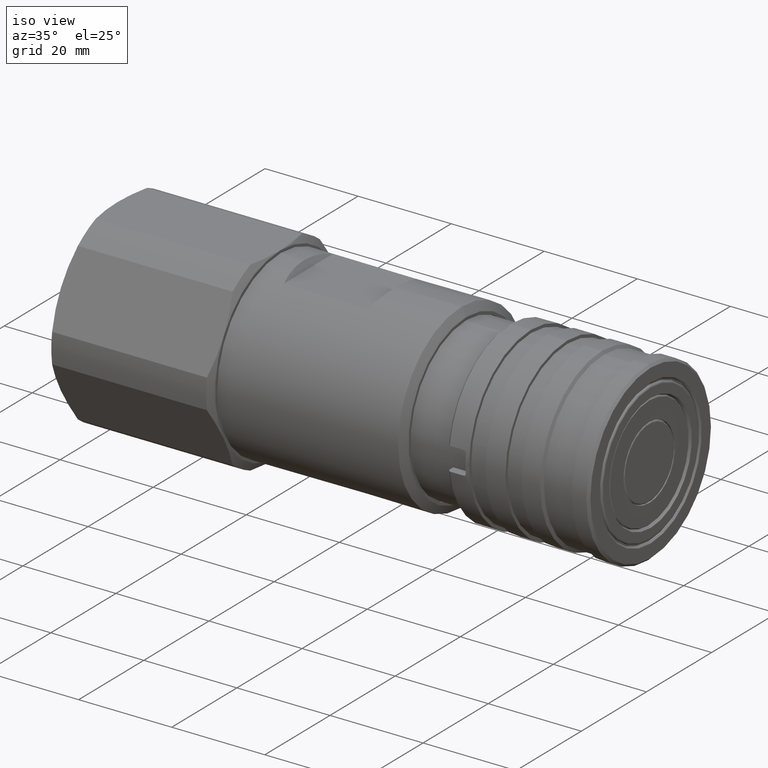
[diagram: clean part render]
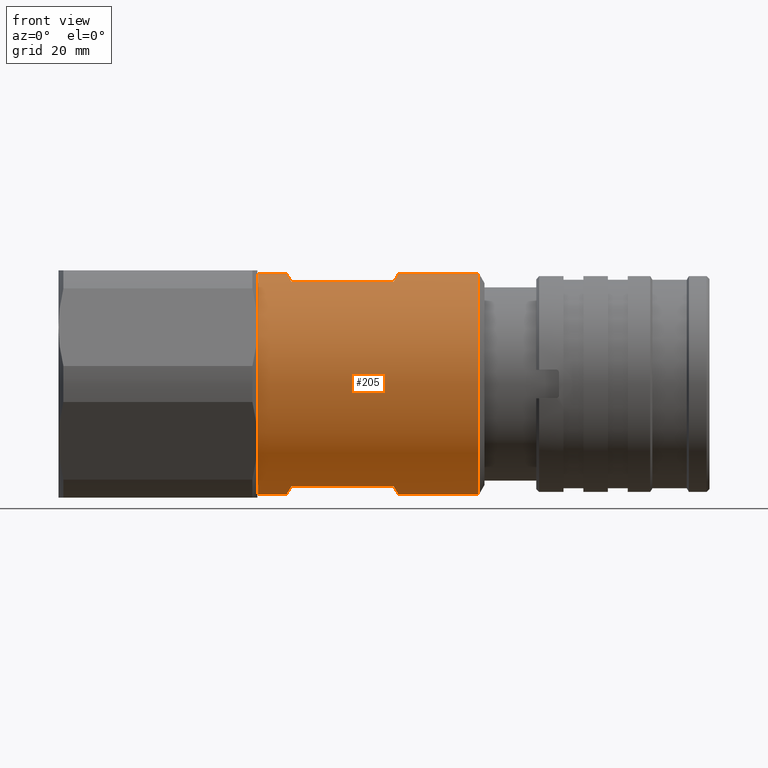
[diagram: tour spotlight — one face highlighted and labeled with its STEP entity id]
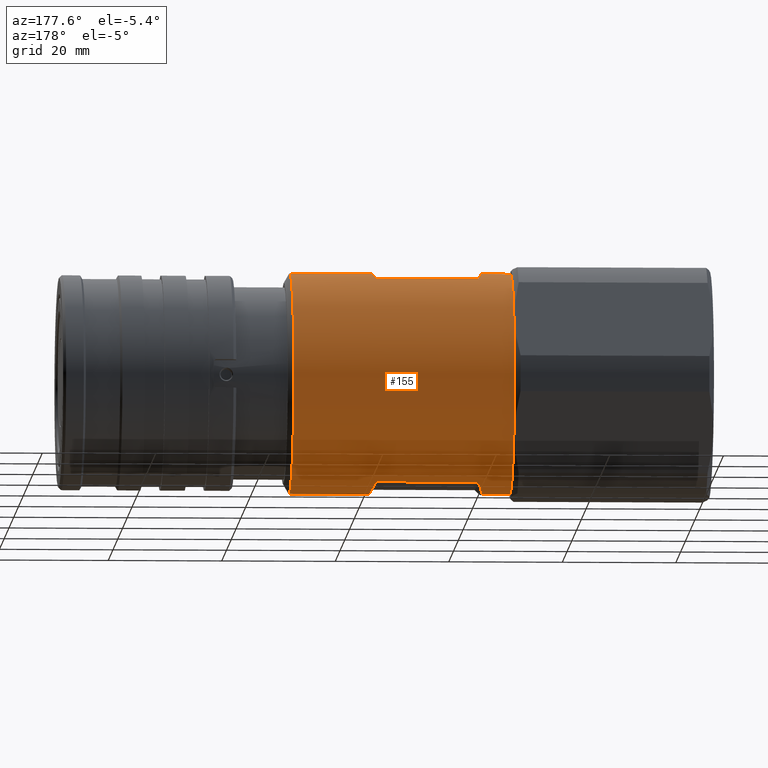
[diagram: tour spotlight — one face highlighted and labeled with its STEP entity id]
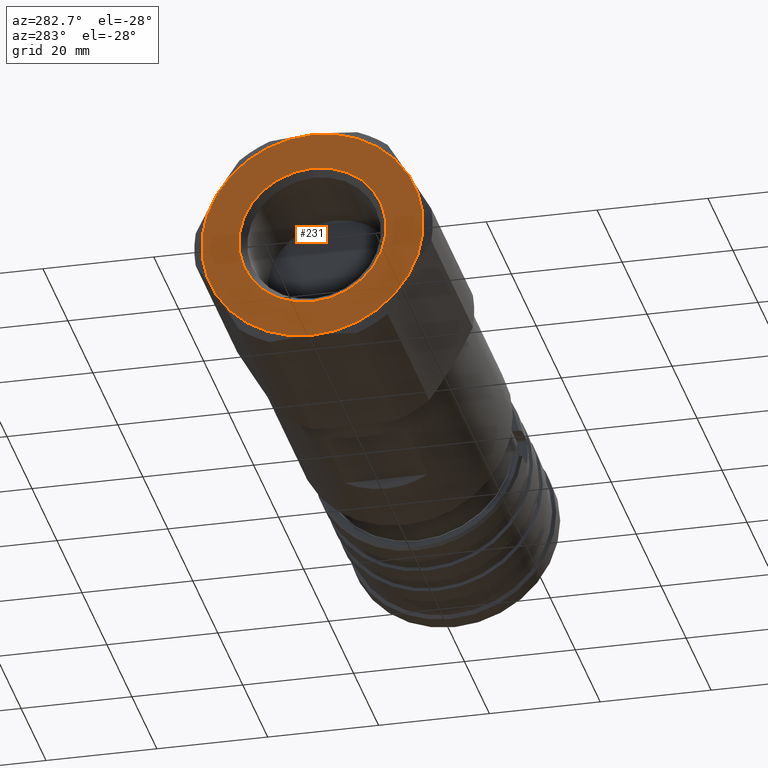
[diagram: tour spotlight — one face highlighted and labeled with its STEP entity id]
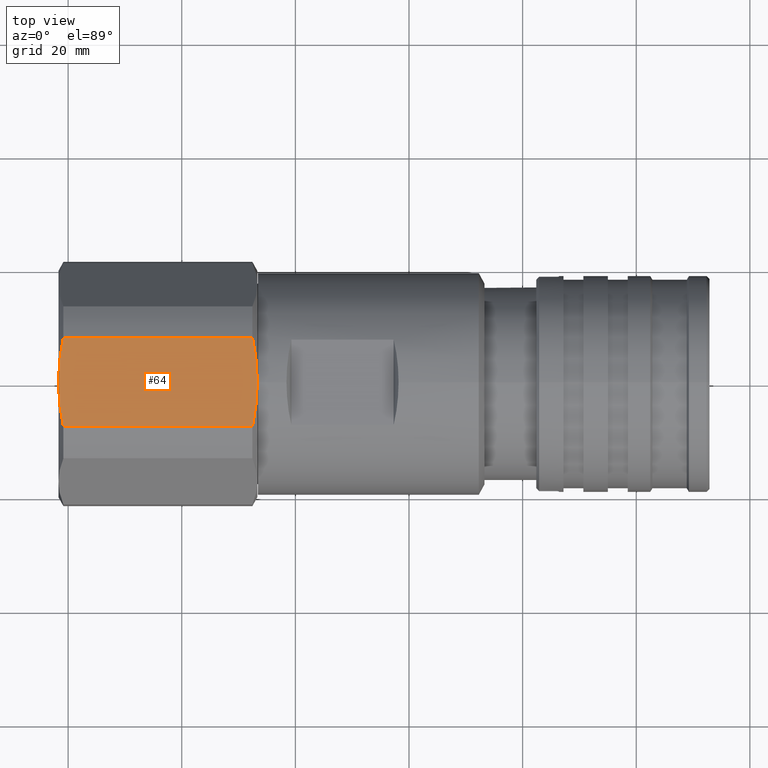
[diagram: tour spotlight — one face highlighted and labeled with its STEP entity id]
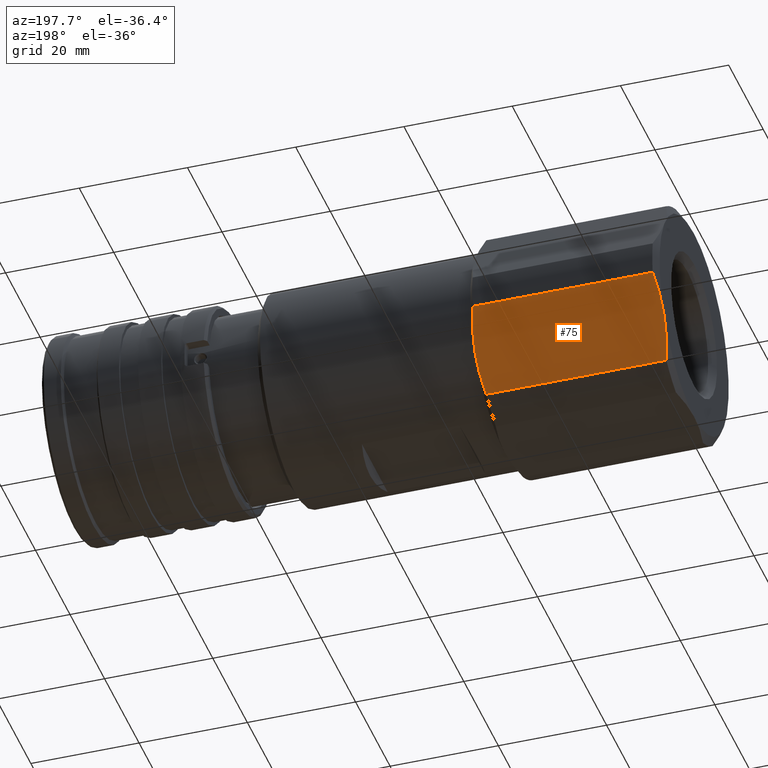
[diagram: tour spotlight — one face highlighted and labeled with its STEP entity id]
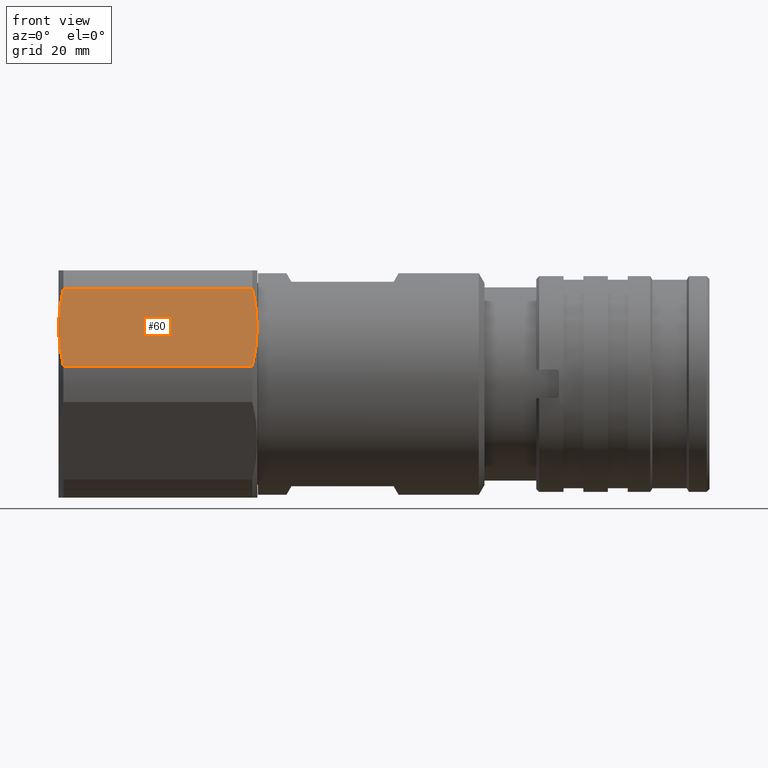
[diagram: tour spotlight — one face highlighted and labeled with its STEP entity id]
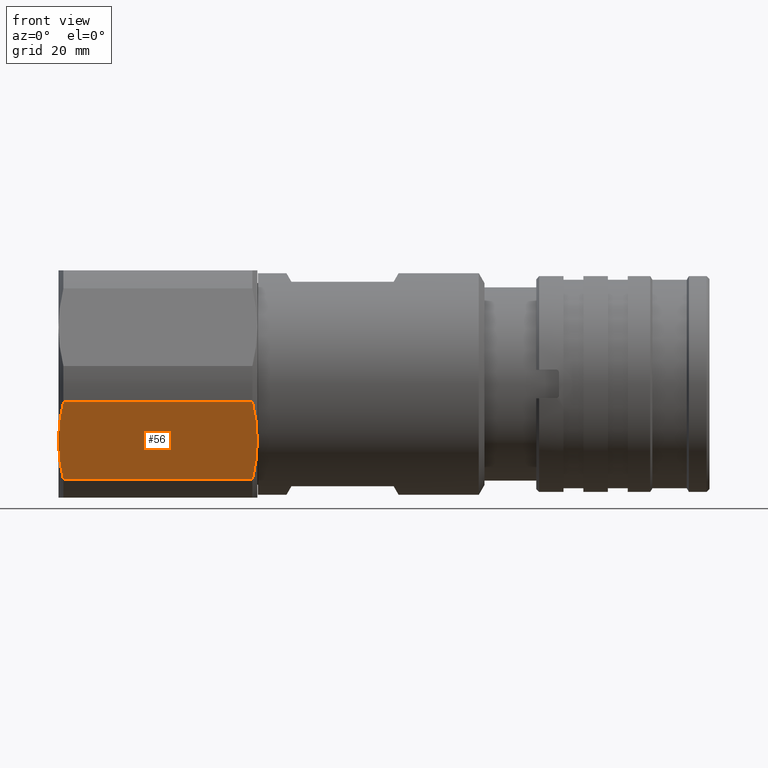
[diagram: tour spotlight — one face highlighted and labeled with its STEP entity id]
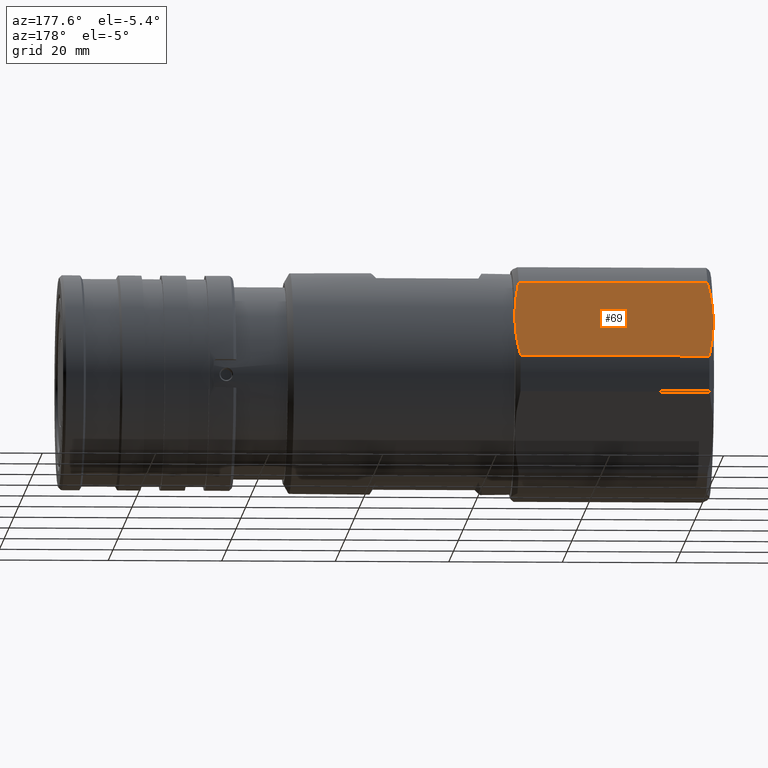
[diagram: tour spotlight — one face highlighted and labeled with its STEP entity id]
A machine part: a face-by-face anatomy tour. The part has 127 B-rep faces; the first image is the clean iso view, then the 8 largest visible faces are spotlighted one at a time (largest first), each with its STEP entity span.

Face 1 — front view, entity #205. In plain terms, the highlighted cylindrical surface (partial cylindrical patch) has radius 19.5 mm, axis along (-1, 0, 0).
Definition (entity closure, byte-faithful):
#4 =( BOUNDED_CURVE ( )  B_SPLINE_CURVE ( 3, ( #1100, #1101, #1102, #1103 ),
 .UNSPECIFIED., .F., .T. ) 
 B_SPLINE_CURVE_WITH_KNOTS ( ( 4, 4 ),
 ( 0.0000000000000000000, 0.3947911196997611100 ),
 .UNSPECIFIED. ) 
 CURVE ( )  GEOMETRIC_REPRESENTATION_ITEM ( )  RATIONAL_B_SPLINE_CURVE ( ( 1.000000000000000000, 0.9870537837939468200, 0.9870537837939468200, 1.000000000000000000 ) ) 
 REPRESENTATION_ITEM ( '' )  );
#5 =( BOUNDED_CURVE ( )  B_SPLINE_CURVE ( 3, ( #1096, #1097, #1098, #1099 ),
 .UNSPECIFIED., .F., .T. ) 
 B_SPLINE_CURVE_WITH_KNOTS ( ( 4, 4 ),
 ( 5.888394187479825300, 6.283185307179586200 ),
 .UNSPECIFIED. ) 
 CURVE ( )  GEOMETRIC_REPRESENTATION_ITEM ( )  RATIONAL_B_SPLINE_CURVE ( ( 1.000000000000000000, 0.9870537837939468200, 0.9870537837939468200, 1.000000000000000000 ) ) 
 REPRESENTATION_ITEM ( '' )  );
#7 =( BOUNDED_CURVE ( )  B_SPLINE_CURVE ( 3, ( #807, #808, #809, #810 ),
 .UNSPECIFIED., .F., .T. ) 
 B_SPLINE_CURVE_WITH_KNOTS ( ( 4, 4 ),
 ( 2.746801533890032700, 3.141592653589793100 ),
 .UNSPECIFIED. ) 
 CURVE ( )  GEOMETRIC_REPRESENTATION_ITEM ( )  RATIONAL_B_SPLINE_CURVE ( ( 1.000000000000000000, 0.9870537837939468200, 0.9870537837939468200, 1.000000000000000000 ) ) 
 REPRESENTATION_ITEM ( '' )  );
#9 =( BOUNDED_CURVE ( )  B_SPLINE_CURVE ( 3, ( #354, #355, #356, #357 ),
 .UNSPECIFIED., .F., .T. ) 
 B_SPLINE_CURVE_WITH_KNOTS ( ( 4, 4 ),
 ( 3.141592653589793100, 3.536383773289553600 ),
 .UNSPECIFIED. ) 
 CURVE ( )  GEOMETRIC_REPRESENTATION_ITEM ( )  RATIONAL_B_SPLINE_CURVE ( ( 1.000000000000000000, 0.9870537837939468200, 0.9870537837939468200, 1.000000000000000000 ) ) 
 REPRESENTATION_ITEM ( '' )  );
#204 = CARTESIAN_POINT ( 'NONE',  ( 12.28963702891821300, 3.519077499237537600E-018, 5.629478834589710100E-017 ) ) ;
#205 = ADVANCED_FACE ( 'NONE', ( #2256 ), #2257, .T. ) ;
#206 = DIRECTION ( 'NONE',  ( -1.000000000000000000, 1.990527426047596600E-018, 2.081668171172171600E-017 ) ) ;
#207 = DIRECTION ( 'NONE',  ( 0.0000000000000000000, 3.668940151690946500E-016, 1.000000000000000000 ) ) ;
#221 = CARTESIAN_POINT ( 'NONE',  ( 15.08572663864005900, -7.499999999999991100, -18.00000000000000000 ) ) ;
#222 = DIRECTION ( 'NONE',  ( -1.000000000000000000, 1.990527426047596600E-018, 2.081668171172171600E-017 ) ) ;
#236 = CARTESIAN_POINT ( 'NONE',  ( 15.08572663864006600, 7.152386680242744400E-015, 19.49999999999999600 ) ) ;
#238 = DIRECTION ( 'NONE',  ( -1.000000000000000000, 1.990527426047596600E-018, 2.081668171172171600E-017 ) ) ;
#354 = CARTESIAN_POINT ( 'NONE',  ( -1.833974596215494100, -4.734739523666094800E-015, -19.49999999999999600 ) ) ;
#355 = CARTESIAN_POINT ( 'NONE',  ( -1.833974596215497400, -2.582949175268665100, -19.49999999999999600 ) ) ;
#356 = CARTESIAN_POINT ( 'NONE',  ( -2.126435999367442900, -5.115739222828912200, -18.99344199048794500 ) ) ;
#357 = CARTESIAN_POINT ( 'NONE',  ( -2.699999999999943800, -7.499999999999991100, -18.00000000000000000 ) ) ;
#408 = CARTESIAN_POINT ( 'NONE',  ( 15.08572663864006600, -4.768418653014606400E-015, -19.49999999999999600 ) ) ;
#409 = DIRECTION ( 'NONE',  ( -1.000000000000000000, 1.990527426047596600E-018, 2.081668171172171600E-017 ) ) ;
#488 = CARTESIAN_POINT ( 'NONE',  ( -26.59999999999996200, 8.092996659433532900E-017, 8.658479842612737000E-016 ) ) ;
#489 = DIRECTION ( 'NONE',  ( -1.000000000000000000, 1.990527426047596600E-018, 2.081668171172171600E-017 ) ) ;
#490 = DIRECTION ( 'NONE',  ( 0.0000000000000000000, 3.668940151690947000E-016, 1.000000000000000000 ) ) ;
#507 = CARTESIAN_POINT ( 'NONE',  ( 15.08572663864006600, 7.152386680242744400E-015, 19.49999999999999600 ) ) ;
#508 = DIRECTION ( 'NONE',  ( -1.000000000000000000, 1.990527426047596600E-018, 2.081668171172171600E-017 ) ) ;
#513 = CARTESIAN_POINT ( 'NONE',  ( -21.56602540378438300, 7.225342997895885700E-015, 19.49999999999999600 ) ) ;
#523 = CARTESIAN_POINT ( 'NONE',  ( -26.59999999999996200, 7.235363262391682200E-015, 19.50000000000000000 ) ) ;
#807 = CARTESIAN_POINT ( 'NONE',  ( -2.699999999999943800, -7.499999999999976900, 18.00000000000000400 ) ) ;
#808 = CARTESIAN_POINT ( 'NONE',  ( -2.126435999367442900, -5.115739222828904300, 18.99344199048795500 ) ) ;
#809 = CARTESIAN_POINT ( 'NONE',  ( -1.833974596215497900, -2.582949175268655800, 19.50000000000000000 ) ) ;
#810 = CARTESIAN_POINT ( 'NONE',  ( -1.833974596215501000, 7.186065809591255300E-015, 19.49999999999999600 ) ) ;
#919 = CARTESIAN_POINT ( 'NONE',  ( 15.08572663864006600, -4.768418653014606400E-015, -19.49999999999999600 ) ) ;
#920 = DIRECTION ( 'NONE',  ( -1.000000000000000000, 1.990527426047596600E-018, 2.081668171172171600E-017 ) ) ;
#960 = CARTESIAN_POINT ( 'NONE',  ( 15.08572663864005900, -7.499999999999976900, 18.00000000000000700 ) ) ;
#961 = DIRECTION ( 'NONE',  ( 1.000000000000000000, -1.990527426047596600E-018, -2.081668171172171600E-017 ) ) ;
#972 = CARTESIAN_POINT ( 'NONE',  ( -2.699999999999943800, -7.499999999999976900, 18.00000000000000400 ) ) ;
#973 = CARTESIAN_POINT ( 'NONE',  ( -20.69999999999994600, -7.499999999999976900, 18.00000000000000000 ) ) ;
#974 = CARTESIAN_POINT ( 'NONE',  ( -20.69999999999994600, -7.499999999999991100, -17.99999999999999300 ) ) ;
#975 = CARTESIAN_POINT ( 'NONE',  ( -2.699999999999943800, -7.499999999999991100, -18.00000000000000000 ) ) ;
#1064 = CARTESIAN_POINT ( 'NONE',  ( -21.56602540378438300, -4.695462335361465100E-015, -19.49999999999999600 ) ) ;
#1096 = CARTESIAN_POINT ( 'NONE',  ( -20.69999999999994600, -7.499999999999991100, -17.99999999999999300 ) ) ;
#1097 = CARTESIAN_POINT ( 'NONE',  ( -21.27356400063245100, -5.115739222828928200, -18.99344199048794500 ) ) ;
#1098 = CARTESIAN_POINT ( 'NONE',  ( -21.56602540378438700, -2.582949175268670000, -19.50000000000000000 ) ) ;
#1099 = CARTESIAN_POINT ( 'NONE',  ( -21.56602540378438300, -4.695462335361465100E-015, -19.49999999999999600 ) ) ;
#1100 = CARTESIAN_POINT ( 'NONE',  ( -21.56602540378438300, 7.225342997895885700E-015, 19.49999999999999600 ) ) ;
#1101 = CARTESIAN_POINT ( 'NONE',  ( -21.56602540378438700, -2.582949175268657100, 19.50000000000000000 ) ) ;
#1102 = CARTESIAN_POINT ( 'NONE',  ( -21.27356400063245100, -5.115739222828911400, 18.99344199048795200 ) ) ;
#1103 = CARTESIAN_POINT ( 'NONE',  ( -20.69999999999994600, -7.499999999999976900, 18.00000000000000000 ) ) ;
#1111 = CARTESIAN_POINT ( 'NONE',  ( -1.833974596215501000, 7.186065809591255300E-015, 19.49999999999999600 ) ) ;
#1138 = VERTEX_POINT ( 'NONE', #3394 ) ;
#1139 = VERTEX_POINT ( 'NONE', #3395 ) ;
#1142 = VERTEX_POINT ( 'NONE', #3398 ) ;
#1146 = VERTEX_POINT ( 'NONE', #3402 ) ;
#1232 = ORIENTED_EDGE ( 'NONE', *, *, #1736, .F. ) ;
#1233 = ORIENTED_EDGE ( 'NONE', *, *, #1693, .T. ) ;
#1234 = ORIENTED_EDGE ( 'NONE', *, *, #1700, .T. ) ;
#1235 = ORIENTED_EDGE ( 'NONE', *, *, #1962, .F. ) ;
#1305 = EDGE_LOOP ( 'NONE', ( #1232, #1233, #1234, #1235, #3743, #3744, #3745, #3746, #3747, #3748, #3749, #3750 ) ) ;
#1519 = LINE ( 'NONE', #919, #1520 ) ;
#1520 = VECTOR ( 'NONE', #920, 1000.000000000000000 ) ;
#1542 = LINE ( 'NONE', #960, #1543 ) ;
#1543 = VECTOR ( 'NONE', #961, 1000.000000000000000 ) ;
#1693 = EDGE_CURVE ( 'NONE', #1138, #1139, #2729, .T. ) ;
#1696 = EDGE_CURVE ( 'NONE', #2889, #2888, #2731, .T. ) ;
#1700 = EDGE_CURVE ( 'NONE', #1139, #3736, #2740, .T. ) ;
#1722 = EDGE_CURVE ( 'NONE', #1142, #2889, #9, .T. ) ;
#1736 = EDGE_CURVE ( 'NONE', #1138, #1142, #2781, .T. ) ;
#1775 = EDGE_CURVE ( 'NONE', #1146, #1797, #2813, .T. ) ;
#1782 = EDGE_CURVE ( 'NONE', #1787, #1797, #2821, .T. ) ;
#1787 = VERTEX_POINT ( 'NONE', #513 ) ;
#1797 = VERTEX_POINT ( 'NONE', #523 ) ;
#1962 = EDGE_CURVE ( 'NONE', #2886, #3736, #7, .T. ) ;
#2256 = FACE_OUTER_BOUND ( 'NONE', #1305, .T. ) ;
#2257 = CYLINDRICAL_SURFACE ( 'NONE', #2431, 19.49999999999999600 ) ;
#2345 = EDGE_CURVE ( 'NONE', #3610, #1146, #1519, .T. ) ;
#2431 = AXIS2_PLACEMENT_3D ( 'NONE', #3192, #3193, #3194 ) ;
#2515 = AXIS2_PLACEMENT_3D ( 'NONE', #204, #206, #207 ) ;
#2543 = AXIS2_PLACEMENT_3D ( 'NONE', #488, #489, #490 ) ;
#2628 = EDGE_CURVE ( 'NONE', #2887, #2886, #1542, .T. ) ;
#2729 = CIRCLE ( 'NONE', #2515, 19.49999999999999300 ) ;
#2731 = LINE ( 'NONE', #221, #2733 ) ;
#2733 = VECTOR ( 'NONE', #222, 1000.000000000000000 ) ;
#2740 = LINE ( 'NONE', #236, #2741 ) ;
#2741 = VECTOR ( 'NONE', #238, 1000.000000000000000 ) ;
#2781 = LINE ( 'NONE', #408, #2782 ) ;
#2782 = VECTOR ( 'NONE', #409, 1000.000000000000000 ) ;
#2813 = CIRCLE ( 'NONE', #2543, 19.50000000000000000 ) ;
#2821 = LINE ( 'NONE', #507, #2823 ) ;
#2823 = VECTOR ( 'NONE', #508, 1000.000000000000000 ) ;
#2886 = VERTEX_POINT ( 'NONE', #972 ) ;
#2887 = VERTEX_POINT ( 'NONE', #973 ) ;
#2888 = VERTEX_POINT ( 'NONE', #974 ) ;
#2889 = VERTEX_POINT ( 'NONE', #975 ) ;
#3192 = CARTESIAN_POINT ( 'NONE',  ( 15.08572663864006600, -2.046615554600533500E-018, -1.910519097134931500E-018 ) ) ;
#3193 = DIRECTION ( 'NONE',  ( -1.000000000000000000, 1.990527426047596600E-018, 2.081668171172171600E-017 ) ) ;
#3194 = DIRECTION ( 'NONE',  ( 0.0000000000000000000, 3.668940151690947000E-016, 1.000000000000000000 ) ) ;
#3394 = CARTESIAN_POINT ( 'NONE',  ( 12.28963702891821300, -4.724147515413219300E-015, -19.49999999999999300 ) ) ;
#3395 = CARTESIAN_POINT ( 'NONE',  ( 12.28963702891821300, 7.157952373296580900E-015, 19.49999999999999300 ) ) ;
#3398 = CARTESIAN_POINT ( 'NONE',  ( -1.833974596215494100, -4.734739523666094800E-015, -19.49999999999999600 ) ) ;
#3402 = CARTESIAN_POINT ( 'NONE',  ( -26.59999999999996200, -4.724147515413220800E-015, -19.50000000000000000 ) ) ;
#3610 = VERTEX_POINT ( 'NONE', #1064 ) ;
#3641 = EDGE_CURVE ( 'NONE', #2888, #3610, #5, .T. ) ;
#3642 = EDGE_CURVE ( 'NONE', #1787, #2887, #4, .T. ) ;
#3736 = VERTEX_POINT ( 'NONE', #1111 ) ;
#3743 = ORIENTED_EDGE ( 'NONE', *, *, #2628, .F. ) ;
#3744 = ORIENTED_EDGE ( 'NONE', *, *, #3642, .F. ) ;
#3745 = ORIENTED_EDGE ( 'NONE', *, *, #1782, .T. ) ;
#3746 = ORIENTED_EDGE ( 'NONE', *, *, #1775, .F. ) ;
#3747 = ORIENTED_EDGE ( 'NONE', *, *, #2345, .F. ) ;
#3748 = ORIENTED_EDGE ( 'NONE', *, *, #3641, .F. ) ;
#3749 = ORIENTED_EDGE ( 'NONE', *, *, #1696, .F. ) ;
#3750 = ORIENTED_EDGE ( 'NONE', *, *, #1722, .F. ) ;

Face 2 — auxiliary view, entity #155. In plain terms, the highlighted cylindrical surface (partial cylindrical patch) has radius 19.5 mm, axis along (-1, 0, 0).
Definition (entity closure, byte-faithful):
#3 =( BOUNDED_CURVE ( )  B_SPLINE_CURVE ( 3, ( #1107, #1108, #1109, #1110 ),
 .UNSPECIFIED., .F., .T. ) 
 B_SPLINE_CURVE_WITH_KNOTS ( ( 4, 4 ),
 ( 2.746801533890033100, 3.141592653589793100 ),
 .UNSPECIFIED. ) 
 CURVE ( )  GEOMETRIC_REPRESENTATION_ITEM ( )  RATIONAL_B_SPLINE_CURVE ( ( 1.000000000000000000, 0.9870537837939468200, 0.9870537837939468200, 1.000000000000000000 ) ) 
 REPRESENTATION_ITEM ( '' )  );
#6 =( BOUNDED_CURVE ( )  B_SPLINE_CURVE ( 3, ( #938, #939, #940, #941 ),
 .UNSPECIFIED., .F., .T. ) 
 B_SPLINE_CURVE_WITH_KNOTS ( ( 4, 4 ),
 ( 0.0000000000000000000, 0.3947911196997611100 ),
 .UNSPECIFIED. ) 
 CURVE ( )  GEOMETRIC_REPRESENTATION_ITEM ( )  RATIONAL_B_SPLINE_CURVE ( ( 1.000000000000000000, 0.9870537837939468200, 0.9870537837939468200, 1.000000000000000000 ) ) 
 REPRESENTATION_ITEM ( '' )  );
#8 =( BOUNDED_CURVE ( )  B_SPLINE_CURVE ( 3, ( #380, #381, #382, #383 ),
 .UNSPECIFIED., .F., .T. ) 
 B_SPLINE_CURVE_WITH_KNOTS ( ( 4, 4 ),
 ( 5.888394187479825300, 6.283185307179586200 ),
 .UNSPECIFIED. ) 
 CURVE ( )  GEOMETRIC_REPRESENTATION_ITEM ( )  RATIONAL_B_SPLINE_CURVE ( ( 1.000000000000000000, 0.9870537837939468200, 0.9870537837939468200, 1.000000000000000000 ) ) 
 REPRESENTATION_ITEM ( '' )  );
#10 =( BOUNDED_CURVE ( )  B_SPLINE_CURVE ( 3, ( #246, #247, #249, #250 ),
 .UNSPECIFIED., .F., .T. ) 
 B_SPLINE_CURVE_WITH_KNOTS ( ( 4, 4 ),
 ( 3.141592653589793100, 3.536383773289554000 ),
 .UNSPECIFIED. ) 
 CURVE ( )  GEOMETRIC_REPRESENTATION_ITEM ( )  RATIONAL_B_SPLINE_CURVE ( ( 1.000000000000000000, 0.9870537837939468200, 0.9870537837939468200, 1.000000000000000000 ) ) 
 REPRESENTATION_ITEM ( '' )  );
#155 = ADVANCED_FACE ( 'NONE', ( #2211 ), #2212, .T. ) ;
#236 = CARTESIAN_POINT ( 'NONE',  ( 15.08572663864006600, 7.152386680242744400E-015, 19.49999999999999600 ) ) ;
#238 = DIRECTION ( 'NONE',  ( -1.000000000000000000, 1.990527426047596600E-018, 2.081668171172171600E-017 ) ) ;
#246 = CARTESIAN_POINT ( 'NONE',  ( -1.833974596215501000, 7.186065809591255300E-015, 19.49999999999999600 ) ) ;
#247 = CARTESIAN_POINT ( 'NONE',  ( -1.833974596215497400, 2.582949175268667700, 19.50000000000000000 ) ) ;
#249 = CARTESIAN_POINT ( 'NONE',  ( -2.126435999367443800, 5.115739222828920200, 18.99344199048794800 ) ) ;
#250 = CARTESIAN_POINT ( 'NONE',  ( -2.699999999999943800, 7.499999999999991100, 18.00000000000000000 ) ) ;
#380 = CARTESIAN_POINT ( 'NONE',  ( -20.69999999999994600, 7.499999999999989300, 17.99999999999999300 ) ) ;
#381 = CARTESIAN_POINT ( 'NONE',  ( -21.27356400063245100, 5.115739222828928200, 18.99344199048794500 ) ) ;
#382 = CARTESIAN_POINT ( 'NONE',  ( -21.56602540378438700, 2.582949175268670800, 19.50000000000000000 ) ) ;
#383 = CARTESIAN_POINT ( 'NONE',  ( -21.56602540378438300, 7.225342997895885700E-015, 19.49999999999999600 ) ) ;
#408 = CARTESIAN_POINT ( 'NONE',  ( 15.08572663864006600, -4.768418653014606400E-015, -19.49999999999999600 ) ) ;
#409 = DIRECTION ( 'NONE',  ( -1.000000000000000000, 1.990527426047596600E-018, 2.081668171172171600E-017 ) ) ;
#436 = CARTESIAN_POINT ( 'NONE',  ( 15.08572663864005900, 7.499999999999991100, 18.00000000000000000 ) ) ;
#437 = DIRECTION ( 'NONE',  ( -1.000000000000000000, 1.990527426047596600E-018, 2.081668171172171600E-017 ) ) ;
#458 = CARTESIAN_POINT ( 'NONE',  ( -26.59999999999996200, 8.092996659433532900E-017, 8.658479842612737000E-016 ) ) ;
#459 = DIRECTION ( 'NONE',  ( -1.000000000000000000, 1.990527426047596600E-018, 2.081668171172171600E-017 ) ) ;
#460 = DIRECTION ( 'NONE',  ( 0.0000000000000000000, 3.668940151690947000E-016, 1.000000000000000000 ) ) ;
#501 = CARTESIAN_POINT ( 'NONE',  ( 12.28963702891821300, 3.519077499237537600E-018, 5.629478834589710100E-017 ) ) ;
#502 = DIRECTION ( 'NONE',  ( -1.000000000000000000, 1.990527426047596600E-018, 2.081668171172171600E-017 ) ) ;
#503 = DIRECTION ( 'NONE',  ( 0.0000000000000000000, 3.668940151690946500E-016, 1.000000000000000000 ) ) ;
#507 = CARTESIAN_POINT ( 'NONE',  ( 15.08572663864006600, 7.152386680242744400E-015, 19.49999999999999600 ) ) ;
#508 = DIRECTION ( 'NONE',  ( -1.000000000000000000, 1.990527426047596600E-018, 2.081668171172171600E-017 ) ) ;
#509 = CARTESIAN_POINT ( 'NONE',  ( -2.699999999999943800, 7.499999999999991100, 18.00000000000000000 ) ) ;
#513 = CARTESIAN_POINT ( 'NONE',  ( -21.56602540378438300, 7.225342997895885700E-015, 19.49999999999999600 ) ) ;
#523 = CARTESIAN_POINT ( 'NONE',  ( -26.59999999999996200, 7.235363262391682200E-015, 19.50000000000000000 ) ) ;
#540 = CARTESIAN_POINT ( 'NONE',  ( 15.08572663864005900, 7.499999999999976900, -18.00000000000000700 ) ) ;
#541 = DIRECTION ( 'NONE',  ( 1.000000000000000000, -1.990527426047596600E-018, -2.081668171172171600E-017 ) ) ;
#919 = CARTESIAN_POINT ( 'NONE',  ( 15.08572663864006600, -4.768418653014606400E-015, -19.49999999999999600 ) ) ;
#920 = DIRECTION ( 'NONE',  ( -1.000000000000000000, 1.990527426047596600E-018, 2.081668171172171600E-017 ) ) ;
#938 = CARTESIAN_POINT ( 'NONE',  ( -21.56602540378438300, -4.695462335361465100E-015, -19.49999999999999600 ) ) ;
#939 = CARTESIAN_POINT ( 'NONE',  ( -21.56602540378438700, 2.582949175268657500, -19.50000000000000000 ) ) ;
#940 = CARTESIAN_POINT ( 'NONE',  ( -21.27356400063245100, 5.115739222828911400, -18.99344199048795200 ) ) ;
#941 = CARTESIAN_POINT ( 'NONE',  ( -20.69999999999994600, 7.499999999999975100, -18.00000000000000000 ) ) ;
#1064 = CARTESIAN_POINT ( 'NONE',  ( -21.56602540378438300, -4.695462335361465100E-015, -19.49999999999999600 ) ) ;
#1107 = CARTESIAN_POINT ( 'NONE',  ( -2.699999999999943800, 7.499999999999975100, -18.00000000000000400 ) ) ;
#1108 = CARTESIAN_POINT ( 'NONE',  ( -2.126435999367444200, 5.115739222828897100, -18.99344199048794800 ) ) ;
#1109 = CARTESIAN_POINT ( 'NONE',  ( -1.833974596215497900, 2.582949175268652200, -19.49999999999999600 ) ) ;
#1110 = CARTESIAN_POINT ( 'NONE',  ( -1.833974596215494100, -4.734739523666094800E-015, -19.49999999999999600 ) ) ;
#1111 = CARTESIAN_POINT ( 'NONE',  ( -1.833974596215501000, 7.186065809591255300E-015, 19.49999999999999600 ) ) ;
#1138 = VERTEX_POINT ( 'NONE', #3394 ) ;
#1139 = VERTEX_POINT ( 'NONE', #3395 ) ;
#1140 = VERTEX_POINT ( 'NONE', #3396 ) ;
#1141 = VERTEX_POINT ( 'NONE', #3397 ) ;
#1142 = VERTEX_POINT ( 'NONE', #3398 ) ;
#1144 = VERTEX_POINT ( 'NONE', #3400 ) ;
#1146 = VERTEX_POINT ( 'NONE', #3402 ) ;
#1519 = LINE ( 'NONE', #919, #1520 ) ;
#1520 = VECTOR ( 'NONE', #920, 1000.000000000000000 ) ;
#1700 = EDGE_CURVE ( 'NONE', #1139, #3736, #2740, .T. ) ;
#1702 = EDGE_CURVE ( 'NONE', #3736, #1783, #10, .T. ) ;
#1732 = EDGE_CURVE ( 'NONE', #1140, #1787, #8, .T. ) ;
#1736 = EDGE_CURVE ( 'NONE', #1138, #1142, #2781, .T. ) ;
#1747 = EDGE_CURVE ( 'NONE', #1783, #1140, #2797, .T. ) ;
#1750 = EDGE_CURVE ( 'NONE', #1797, #1146, #2801, .T. ) ;
#1780 = EDGE_CURVE ( 'NONE', #1139, #1138, #2820, .T. ) ;
#1782 = EDGE_CURVE ( 'NONE', #1787, #1797, #2821, .T. ) ;
#1783 = VERTEX_POINT ( 'NONE', #509 ) ;
#1787 = VERTEX_POINT ( 'NONE', #513 ) ;
#1797 = VERTEX_POINT ( 'NONE', #523 ) ;
#1883 = EDGE_CURVE ( 'NONE', #1144, #1141, #2824, .T. ) ;
#2093 = EDGE_LOOP ( 'NONE', ( #3718, #3719, #3720, #3721, #3722, #3723, #3724, #3725, #3726, #3727, #3728, #3729 ) ) ;
#2211 = FACE_OUTER_BOUND ( 'NONE', #2093, .T. ) ;
#2212 = CYLINDRICAL_SURFACE ( 'NONE', #2408, 19.49999999999999600 ) ;
#2345 = EDGE_CURVE ( 'NONE', #3610, #1146, #1519, .T. ) ;
#2353 = EDGE_CURVE ( 'NONE', #3610, #1144, #6, .T. ) ;
#2408 = AXIS2_PLACEMENT_3D ( 'NONE', #3116, #3117, #3118 ) ;
#2537 = AXIS2_PLACEMENT_3D ( 'NONE', #458, #459, #460 ) ;
#2546 = AXIS2_PLACEMENT_3D ( 'NONE', #501, #502, #503 ) ;
#2740 = LINE ( 'NONE', #236, #2741 ) ;
#2741 = VECTOR ( 'NONE', #238, 1000.000000000000000 ) ;
#2781 = LINE ( 'NONE', #408, #2782 ) ;
#2782 = VECTOR ( 'NONE', #409, 1000.000000000000000 ) ;
#2797 = LINE ( 'NONE', #436, #2798 ) ;
#2798 = VECTOR ( 'NONE', #437, 1000.000000000000000 ) ;
#2801 = CIRCLE ( 'NONE', #2537, 19.50000000000000000 ) ;
#2820 = CIRCLE ( 'NONE', #2546, 19.49999999999999300 ) ;
#2821 = LINE ( 'NONE', #507, #2823 ) ;
#2823 = VECTOR ( 'NONE', #508, 1000.000000000000000 ) ;
#2824 = LINE ( 'NONE', #540, #2825 ) ;
#2825 = VECTOR ( 'NONE', #541, 1000.000000000000000 ) ;
#3116 = CARTESIAN_POINT ( 'NONE',  ( 15.08572663864006600, -2.046615554600533500E-018, -1.910519097134931500E-018 ) ) ;
#3117 = DIRECTION ( 'NONE',  ( -1.000000000000000000, 1.990527426047596600E-018, 2.081668171172171600E-017 ) ) ;
#3118 = DIRECTION ( 'NONE',  ( 0.0000000000000000000, 3.668940151690947000E-016, 1.000000000000000000 ) ) ;
#3394 = CARTESIAN_POINT ( 'NONE',  ( 12.28963702891821300, -4.724147515413219300E-015, -19.49999999999999300 ) ) ;
#3395 = CARTESIAN_POINT ( 'NONE',  ( 12.28963702891821300, 7.157952373296580900E-015, 19.49999999999999300 ) ) ;
#3396 = CARTESIAN_POINT ( 'NONE',  ( -20.69999999999994600, 7.499999999999989300, 17.99999999999999300 ) ) ;
#3397 = CARTESIAN_POINT ( 'NONE',  ( -2.699999999999943800, 7.499999999999975100, -18.00000000000000400 ) ) ;
#3398 = CARTESIAN_POINT ( 'NONE',  ( -1.833974596215494100, -4.734739523666094800E-015, -19.49999999999999600 ) ) ;
#3400 = CARTESIAN_POINT ( 'NONE',  ( -20.69999999999994600, 7.499999999999975100, -18.00000000000000000 ) ) ;
#3402 = CARTESIAN_POINT ( 'NONE',  ( -26.59999999999996200, -4.724147515413220800E-015, -19.50000000000000000 ) ) ;
#3610 = VERTEX_POINT ( 'NONE', #1064 ) ;
#3644 = EDGE_CURVE ( 'NONE', #1141, #1142, #3, .T. ) ;
#3718 = ORIENTED_EDGE ( 'NONE', *, *, #1780, .T. ) ;
#3719 = ORIENTED_EDGE ( 'NONE', *, *, #1736, .T. ) ;
#3720 = ORIENTED_EDGE ( 'NONE', *, *, #3644, .F. ) ;
#3721 = ORIENTED_EDGE ( 'NONE', *, *, #1883, .F. ) ;
#3722 = ORIENTED_EDGE ( 'NONE', *, *, #2353, .F. ) ;
#3723 = ORIENTED_EDGE ( 'NONE', *, *, #2345, .T. ) ;
#3724 = ORIENTED_EDGE ( 'NONE', *, *, #1750, .F. ) ;
#3725 = ORIENTED_EDGE ( 'NONE', *, *, #1782, .F. ) ;
#3726 = ORIENTED_EDGE ( 'NONE', *, *, #1732, .F. ) ;
#3727 = ORIENTED_EDGE ( 'NONE', *, *, #1747, .F. ) ;
#3728 = ORIENTED_EDGE ( 'NONE', *, *, #1702, .F. ) ;
#3729 = ORIENTED_EDGE ( 'NONE', *, *, #1700, .F. ) ;
#3736 = VERTEX_POINT ( 'NONE', #1111 ) ;

Face 3 — auxiliary view, entity #231. In plain terms, the highlighted planar face has unit normal (-1, 0, 0).
Definition (entity closure, byte-faithful):
#141 = CARTESIAN_POINT ( 'NONE',  ( -61.69999999999994600, 8.317563489154058600E-017, 8.698401715295804100E-016 ) ) ;
#142 = DIRECTION ( 'NONE',  ( 1.000000000000000000, -0.0000000000000000000, -0.0000000000000000000 ) ) ;
#144 = DIRECTION ( 'NONE',  ( 0.0000000000000000000, 0.0000000000000000000, -1.000000000000000000 ) ) ;
#231 = ADVANCED_FACE ( 'NONE', ( #2273, #2274 ), #3236, .T. ) ;
#418 = CARTESIAN_POINT ( 'NONE',  ( -61.69999999999994600, 8.317563489154058600E-017, 8.698401715295804100E-016 ) ) ;
#419 = DIRECTION ( 'NONE',  ( 1.000000000000000000, -0.0000000000000000000, -0.0000000000000000000 ) ) ;
#420 = DIRECTION ( 'NONE',  ( 0.0000000000000000000, 0.0000000000000000000, -1.000000000000000000 ) ) ;
#461 = CARTESIAN_POINT ( 'NONE',  ( -61.69999999999994600, 8.317563489154058600E-017, 8.698401715295804100E-016 ) ) ;
#462 = DIRECTION ( 'NONE',  ( 1.000000000000000000, -0.0000000000000000000, -0.0000000000000000000 ) ) ;
#463 = DIRECTION ( 'NONE',  ( 0.0000000000000000000, 0.0000000000000000000, -1.000000000000000000 ) ) ;
#491 = CARTESIAN_POINT ( 'NONE',  ( -61.69999999999994600, 8.317563489154058600E-017, 8.698401715295804100E-016 ) ) ;
#492 = DIRECTION ( 'NONE',  ( 1.000000000000000000, -0.0000000000000000000, -0.0000000000000000000 ) ) ;
#493 = DIRECTION ( 'NONE',  ( 0.0000000000000000000, 0.0000000000000000000, -1.000000000000000000 ) ) ;
#512 = CARTESIAN_POINT ( 'NONE',  ( -61.69999999999994600, 1.711955877757520600E-015, -13.29999999999999900 ) ) ;
#526 = CARTESIAN_POINT ( 'NONE',  ( -61.69999999999994600, 8.317563489154058600E-017, 13.30000000000000200 ) ) ;
#819 = CARTESIAN_POINT ( 'NONE',  ( -61.69999999999994600, 8.317563489154058600E-017, 8.698401715295804100E-016 ) ) ;
#820 = DIRECTION ( 'NONE',  ( 1.000000000000000000, -0.0000000000000000000, -0.0000000000000000000 ) ) ;
#821 = DIRECTION ( 'NONE',  ( 0.0000000000000000000, 0.0000000000000000000, -1.000000000000000000 ) ) ;
#945 = CARTESIAN_POINT ( 'NONE',  ( -61.69999999999994600, 8.317563489154058600E-017, 8.698401715295804100E-016 ) ) ;
#946 = DIRECTION ( 'NONE',  ( 1.000000000000000000, -0.0000000000000000000, -0.0000000000000000000 ) ) ;
#947 = DIRECTION ( 'NONE',  ( 0.0000000000000000000, 0.0000000000000000000, -1.000000000000000000 ) ) ;
#976 = CARTESIAN_POINT ( 'NONE',  ( -61.69999999999994600, -6.855718269015688200E-015, -20.00000000000000000 ) ) ;
#977 = CARTESIAN_POINT ( 'NONE',  ( -61.69999999999994600, 17.32050807568877800, -9.999999999999994700 ) ) ;
#978 = CARTESIAN_POINT ( 'NONE',  ( -61.69999999999994600, -17.32050807568876400, -10.00000000000000000 ) ) ;
#979 = CARTESIAN_POINT ( 'NONE',  ( -61.69999999999994600, -17.32050807568878200, 9.999999999999989300 ) ) ;
#980 = CARTESIAN_POINT ( 'NONE',  ( -61.69999999999994600, -6.855718269015688200E-015, 20.00000000000000000 ) ) ;
#981 = CARTESIAN_POINT ( 'NONE',  ( -61.69999999999994600, 17.32050807568876700, 10.00000000000001100 ) ) ;
#1300 = EDGE_LOOP ( 'NONE', ( #3789, #3790, #3791, #3792, #3793, #3794 ) ) ;
#1301 = EDGE_LOOP ( 'NONE', ( #3795, #3796 ) ) ;
#1326 = EDGE_CURVE ( 'NONE', #1786, #1800, #2647, .T. ) ;
#1330 = EDGE_CURVE ( 'NONE', #1800, #1786, #2649, .T. ) ;
#1487 = CIRCLE ( 'NONE', #2585, 20.00000000000000000 ) ;
#1534 = CIRCLE ( 'NONE', #2605, 20.00000000000000000 ) ;
#1680 = EDGE_CURVE ( 'NONE', #2895, #2894, #2712, .T. ) ;
#1740 = EDGE_CURVE ( 'NONE', #2894, #2893, #2788, .T. ) ;
#1751 = EDGE_CURVE ( 'NONE', #2891, #2895, #2803, .T. ) ;
#1776 = EDGE_CURVE ( 'NONE', #2892, #2890, #2814, .T. ) ;
#1786 = VERTEX_POINT ( 'NONE', #512 ) ;
#1800 = VERTEX_POINT ( 'NONE', #526 ) ;
#1966 = EDGE_CURVE ( 'NONE', #2890, #2891, #1487, .T. ) ;
#2273 = FACE_OUTER_BOUND ( 'NONE', #1300, .T. ) ;
#2274 = FACE_BOUND ( 'NONE', #1301, .T. ) ;
#2443 = AXIS2_PLACEMENT_3D ( 'NONE', #3237, #3238, #3239 ) ;
#2483 = AXIS2_PLACEMENT_3D ( 'NONE', #3434, #3435, #3436 ) ;
#2485 = AXIS2_PLACEMENT_3D ( 'NONE', #3464, #3465, #3466 ) ;
#2507 = AXIS2_PLACEMENT_3D ( 'NONE', #141, #142, #144 ) ;
#2533 = AXIS2_PLACEMENT_3D ( 'NONE', #418, #419, #420 ) ;
#2538 = AXIS2_PLACEMENT_3D ( 'NONE', #461, #462, #463 ) ;
#2544 = AXIS2_PLACEMENT_3D ( 'NONE', #491, #492, #493 ) ;
#2585 = AXIS2_PLACEMENT_3D ( 'NONE', #819, #820, #821 ) ;
#2605 = AXIS2_PLACEMENT_3D ( 'NONE', #945, #946, #947 ) ;
#2618 = EDGE_CURVE ( 'NONE', #2893, #2892, #1534, .T. ) ;
#2647 = CIRCLE ( 'NONE', #2483, 13.30000000000000100 ) ;
#2649 = CIRCLE ( 'NONE', #2485, 13.30000000000000100 ) ;
#2712 = CIRCLE ( 'NONE', #2507, 20.00000000000000000 ) ;
#2788 = CIRCLE ( 'NONE', #2533, 20.00000000000000000 ) ;
#2803 = CIRCLE ( 'NONE', #2538, 20.00000000000000000 ) ;
#2814 = CIRCLE ( 'NONE', #2544, 20.00000000000000000 ) ;
#2890 = VERTEX_POINT ( 'NONE', #976 ) ;
#2891 = VERTEX_POINT ( 'NONE', #977 ) ;
#2892 = VERTEX_POINT ( 'NONE', #978 ) ;
#2893 = VERTEX_POINT ( 'NONE', #979 ) ;
#2894 = VERTEX_POINT ( 'NONE', #980 ) ;
#2895 = VERTEX_POINT ( 'NONE', #981 ) ;
#3236 = PLANE ( 'NONE',  #2443 ) ;
#3237 = CARTESIAN_POINT ( 'NONE',  ( -61.69999999999994600, 20.00000000000000000, 8.698401715295804100E-016 ) ) ;
#3238 = DIRECTION ( 'NONE',  ( -1.000000000000000000, 0.0000000000000000000, 0.0000000000000000000 ) ) ;
#3239 = DIRECTION ( 'NONE',  ( 0.0000000000000000000, 0.0000000000000000000, 1.000000000000000000 ) ) ;
#3434 = CARTESIAN_POINT ( 'NONE',  ( -61.69999999999994600, 8.317563489154058600E-017, 8.698401715295804100E-016 ) ) ;
#3435 = DIRECTION ( 'NONE',  ( -1.000000000000000000, -0.0000000000000000000, -0.0000000000000000000 ) ) ;
#3436 = DIRECTION ( 'NONE',  ( 0.0000000000000000000, 0.0000000000000000000, 1.000000000000000000 ) ) ;
#3464 = CARTESIAN_POINT ( 'NONE',  ( -61.69999999999994600, 8.317563489154058600E-017, 8.698401715295804100E-016 ) ) ;
#3465 = DIRECTION ( 'NONE',  ( -1.000000000000000000, -0.0000000000000000000, -0.0000000000000000000 ) ) ;
#3466 = DIRECTION ( 'NONE',  ( 0.0000000000000000000, 0.0000000000000000000, 1.000000000000000000 ) ) ;
#3789 = ORIENTED_EDGE ( 'NONE', *, *, #1966, .F. ) ;
#3790 = ORIENTED_EDGE ( 'NONE', *, *, #1776, .F. ) ;
#3791 = ORIENTED_EDGE ( 'NONE', *, *, #2618, .F. ) ;
#3792 = ORIENTED_EDGE ( 'NONE', *, *, #1740, .F. ) ;
#3793 = ORIENTED_EDGE ( 'NONE', *, *, #1680, .F. ) ;
#3794 = ORIENTED_EDGE ( 'NONE', *, *, #1751, .F. ) ;
#3795 = ORIENTED_EDGE ( 'NONE', *, *, #1330, .F. ) ;
#3796 = ORIENTED_EDGE ( 'NONE', *, *, #1326, .F. ) ;

Face 4 — top view, entity #64. In plain terms, the highlighted planar face has unit normal (0, -0, 1).
Definition (entity closure, byte-faithful):
#41 = CARTESIAN_POINT ( 'NONE',  ( -61.69999999999994600, -6.855718269015688200E-015, 20.00000000000000000 ) ) ;
#43 = CARTESIAN_POINT ( 'NONE',  ( -61.69999999999993900, -1.325502949327712400, 19.99999999999999600 ) ) ;
#44 = CARTESIAN_POINT ( 'NONE',  ( -61.62325333254225500, -2.645409513542389800, 20.00000000000000400 ) ) ;
#46 = CARTESIAN_POINT ( 'NONE',  ( -61.32837364034526900, -5.274912715413550200, 20.00000000000000000 ) ) ;
#47 = CARTESIAN_POINT ( 'NONE',  ( -61.11053684290291000, -6.584530954034475400, 20.00000000000000000 ) ) ;
#49 = CARTESIAN_POINT ( 'NONE',  ( -60.83397459621552600, -7.889866919029750600, 19.99999999999999600 ) ) ;
#64 = ADVANCED_FACE ( 'NONE', ( #2132 ), #2946, .T. ) ;
#264 = CARTESIAN_POINT ( 'NONE',  ( -60.83397459621552600, 7.889866919029739900, 20.00000000000000400 ) ) ;
#266 = CARTESIAN_POINT ( 'NONE',  ( -61.10693234581664500, 6.601543687112796400, 20.00000000000000000 ) ) ;
#267 = CARTESIAN_POINT ( 'NONE',  ( -61.32518559318053500, 5.298242350599401200, 19.99999999999999300 ) ) ;
#269 = CARTESIAN_POINT ( 'NONE',  ( -61.54846815326513400, 3.314788479474182200, 20.00000000000000000 ) ) ;
#270 = CARTESIAN_POINT ( 'NONE',  ( -61.60544115324447700, 2.648296669765212400, 20.00000000000000000 ) ) ;
#272 = CARTESIAN_POINT ( 'NONE',  ( -61.68107155414942600, 1.322080974906868300, 20.00000000000000000 ) ) ;
#274 = CARTESIAN_POINT ( 'NONE',  ( -61.69999999999995300, 0.6603503540829541700, 20.00000000000000000 ) ) ;
#275 = CARTESIAN_POINT ( 'NONE',  ( -61.69999999999994600, -6.855718269015688200E-015, 20.00000000000000000 ) ) ;
#559 = CARTESIAN_POINT ( 'NONE',  ( -27.56602540378437300, -7.889866919029750600, 19.99999999999999600 ) ) ;
#560 = CARTESIAN_POINT ( 'NONE',  ( -27.28946315709698200, -6.584530954034476300, 19.99999999999999600 ) ) ;
#561 = CARTESIAN_POINT ( 'NONE',  ( -27.07162635965462600, -5.274912715413554700, 20.00000000000000400 ) ) ;
#562 = CARTESIAN_POINT ( 'NONE',  ( -26.77674666745764400, -2.645409513542388100, 20.00000000000000000 ) ) ;
#563 = CARTESIAN_POINT ( 'NONE',  ( -26.69999999999994200, -1.325502949327705500, 19.99999999999999600 ) ) ;
#564 = CARTESIAN_POINT ( 'NONE',  ( -26.69999999999994600, -5.120994793038881100E-015, 20.00000000000000000 ) ) ;
#732 = CARTESIAN_POINT ( 'NONE',  ( -26.69999999999994600, -5.120994793038881100E-015, 20.00000000000000000 ) ) ;
#733 = CARTESIAN_POINT ( 'NONE',  ( -26.69999999999995000, 0.6603503540829619400, 19.99999999999999600 ) ) ;
#734 = CARTESIAN_POINT ( 'NONE',  ( -26.71892844585047300, 1.322080974906880000, 20.00000000000000000 ) ) ;
#735 = CARTESIAN_POINT ( 'NONE',  ( -26.79455884675541500, 2.648296669765223000, 20.00000000000000400 ) ) ;
#736 = CARTESIAN_POINT ( 'NONE',  ( -26.85153184673476900, 3.314788479474185300, 20.00000000000000000 ) ) ;
#737 = CARTESIAN_POINT ( 'NONE',  ( -27.07481440681933200, 5.298242350599402100, 19.99999999999999600 ) ) ;
#738 = CARTESIAN_POINT ( 'NONE',  ( -27.29306765418325800, 6.601543687112795500, 20.00000000000000400 ) ) ;
#739 = CARTESIAN_POINT ( 'NONE',  ( -27.56602540378437300, 7.889866919029738100, 20.00000000000000000 ) ) ;
#784 = CARTESIAN_POINT ( 'NONE',  ( -26.69999999999994600, 7.889866919029739900, 20.00000000000000400 ) ) ;
#785 = DIRECTION ( 'NONE',  ( 1.000000000000000000, -0.0000000000000000000, -0.0000000000000000000 ) ) ;
#786 = CARTESIAN_POINT ( 'NONE',  ( -26.69999999999994600, -7.889866919029750600, 19.99999999999999600 ) ) ;
#787 = DIRECTION ( 'NONE',  ( -1.000000000000000000, 0.0000000000000000000, 0.0000000000000000000 ) ) ;
#980 = CARTESIAN_POINT ( 'NONE',  ( -61.69999999999994600, -6.855718269015688200E-015, 20.00000000000000000 ) ) ;
#985 = CARTESIAN_POINT ( 'NONE',  ( -60.83397459621552600, -7.889866919029750600, 19.99999999999999600 ) ) ;
#986 = CARTESIAN_POINT ( 'NONE',  ( -60.83397459621552600, 7.889866919029739900, 20.00000000000000400 ) ) ;
#1017 = CARTESIAN_POINT ( 'NONE',  ( -26.69999999999994600, -5.120994793038881100E-015, 20.00000000000000000 ) ) ;
#1023 = CARTESIAN_POINT ( 'NONE',  ( -27.56602540378437300, -7.889866919029750600, 19.99999999999999600 ) ) ;
#1044 = CARTESIAN_POINT ( 'NONE',  ( -27.56602540378437300, 7.889866919029738100, 20.00000000000000000 ) ) ;
#1360 = EDGE_CURVE ( 'NONE', #2894, #2899, #1873, .T. ) ;
#1393 = ORIENTED_EDGE ( 'NONE', *, *, #1360, .T. ) ;
#1394 = ORIENTED_EDGE ( 'NONE', *, *, #1954, .F. ) ;
#1395 = ORIENTED_EDGE ( 'NONE', *, *, #1889, .T. ) ;
#1396 = ORIENTED_EDGE ( 'NONE', *, *, #1940, .T. ) ;
#1397 = ORIENTED_EDGE ( 'NONE', *, *, #1953, .F. ) ;
#1398 = ORIENTED_EDGE ( 'NONE', *, *, #1705, .T. ) ;
#1470 = LINE ( 'NONE', #784, #1471 ) ;
#1471 = VECTOR ( 'NONE', #785, 1000.000000000000000 ) ;
#1472 = LINE ( 'NONE', #786, #1473 ) ;
#1473 = VECTOR ( 'NONE', #787, 1000.000000000000000 ) ;
#1705 = EDGE_CURVE ( 'NONE', #2900, #2894, #1859, .T. ) ;
#1853 = B_SPLINE_CURVE_WITH_KNOTS ( 'NONE', 3,
 ( #732, #733, #734, #735, #736, #737, #738, #739 ),
 .UNSPECIFIED., .F., .F.,
 ( 4, 2, 2, 4 ),
 ( 0.03213990016760270900, 0.03411669152886043200, 0.03609348289011814900, 0.04004706561263358900 ),
 .UNSPECIFIED. ) ;
#1859 = B_SPLINE_CURVE_WITH_KNOTS ( 'NONE', 3,
 ( #264, #266, #267, #269, #270, #272, #274, #275 ),
 .UNSPECIFIED., .F., .F.,
 ( 4, 2, 2, 4 ),
 ( 0.01238715780545813900, 0.01633117202074464700, 0.01830317912838790000, 0.02027518623603115400 ),
 .UNSPECIFIED. ) ;
#1873 = B_SPLINE_CURVE_WITH_KNOTS ( 'NONE', 3,
 ( #41, #43, #44, #46, #47, #49 ),
 .UNSPECIFIED., .F., .F.,
 ( 4, 2, 4 ),
 ( 0.02027518623603115400, 0.02423354140479042800, 0.02819189657354970500 ),
 .UNSPECIFIED. ) ;
#1875 = B_SPLINE_CURVE_WITH_KNOTS ( 'NONE', 3,
 ( #559, #560, #561, #562, #563, #564 ),
 .UNSPECIFIED., .F., .F.,
 ( 4, 2, 4 ),
 ( 0.02420398323092931900, 0.02817194169926601600, 0.03213990016760270900 ),
 .UNSPECIFIED. ) ;
#1889 = EDGE_CURVE ( 'NONE', #3569, #3563, #1875, .T. ) ;
#1940 = EDGE_CURVE ( 'NONE', #3563, #3590, #1853, .T. ) ;
#1953 = EDGE_CURVE ( 'NONE', #2900, #3590, #1470, .T. ) ;
#1954 = EDGE_CURVE ( 'NONE', #3569, #2899, #1472, .T. ) ;
#2043 = EDGE_LOOP ( 'NONE', ( #1393, #1394, #1395, #1396, #1397, #1398 ) ) ;
#2132 = FACE_OUTER_BOUND ( 'NONE', #2043, .T. ) ;
#2367 = AXIS2_PLACEMENT_3D ( 'NONE', #2947, #2948, #2949 ) ;
#2894 = VERTEX_POINT ( 'NONE', #980 ) ;
#2899 = VERTEX_POINT ( 'NONE', #985 ) ;
#2900 = VERTEX_POINT ( 'NONE', #986 ) ;
#2946 = PLANE ( 'NONE',  #2367 ) ;
#2947 = CARTESIAN_POINT ( 'NONE',  ( -61.69999999999994600, 11.54700538379250800, 20.00000000000000400 ) ) ;
#2948 = DIRECTION ( 'NONE',  ( 0.0000000000000000000, -3.004629197474319000E-016, 1.000000000000000000 ) ) ;
#2949 = DIRECTION ( 'NONE',  ( 0.0000000000000000000, -1.000000000000000000, -3.004629197474319000E-016 ) ) ;
#3563 = VERTEX_POINT ( 'NONE', #1017 ) ;
#3569 = VERTEX_POINT ( 'NONE', #1023 ) ;
#3590 = VERTEX_POINT ( 'NONE', #1044 ) ;

Face 5 — auxiliary view, entity #75. In plain terms, the highlighted planar face has unit normal (0, 0.866, -0.5).
Definition (entity closure, byte-faithful):
#74 = CARTESIAN_POINT ( 'NONE',  ( -26.69999999999994600, 21.26544153520364600, -3.167174815641790300 ) ) ;
#75 = ADVANCED_FACE ( 'NONE', ( #2139 ), #2964, .T. ) ;
#76 = DIRECTION ( 'NONE',  ( -1.000000000000000000, 0.0000000000000000000, 0.0000000000000000000 ) ) ;
#536 = CARTESIAN_POINT ( 'NONE',  ( -27.56602540378437300, 21.26544153520364200, -3.167174815641780500 ) ) ;
#539 = CARTESIAN_POINT ( 'NONE',  ( -27.56602540378437300, 13.37557461617392300, -16.83282518435820700 ) ) ;
#641 = CARTESIAN_POINT ( 'NONE',  ( -60.83397459621552600, 13.37557461617392300, -16.83282518435820700 ) ) ;
#642 = CARTESIAN_POINT ( 'NONE',  ( -61.11097243693976800, 14.02927057079945200, -15.70059057824453700 ) ) ;
#643 = CARTESIAN_POINT ( 'NONE',  ( -61.32885050010322200, 14.68465684813776300, -14.56542824731115200 ) ) ;
#644 = CARTESIAN_POINT ( 'NONE',  ( -61.62350856810414300, 15.99946360697679100, -12.28811613886699100 ) ) ;
#645 = CARTESIAN_POINT ( 'NONE',  ( -61.69999999999996700, 16.65889233920878700, -11.14595207067044500 ) ) ;
#646 = CARTESIAN_POINT ( 'NONE',  ( -61.69999999999994600, 17.32050807568877800, -9.999999999999994700 ) ) ;
#664 = CARTESIAN_POINT ( 'NONE',  ( -26.69999999999994600, 17.32050807568877800, -9.999999999999991100 ) ) ;
#665 = CARTESIAN_POINT ( 'NONE',  ( -26.69999999999995300, 16.66313602336274300, -11.13860179410452700 ) ) ;
#666 = CARTESIAN_POINT ( 'NONE',  ( -26.77573269336108900, 16.00284838333824000, -12.28225353423670200 ) ) ;
#667 = CARTESIAN_POINT ( 'NONE',  ( -27.07190938794745300, 14.68126694247282600, -14.57129973615567500 ) ) ;
#668 = CARTESIAN_POINT ( 'NONE',  ( -27.29036070610014200, 14.02612444442545900, -15.70603982897131000 ) ) ;
#669 = CARTESIAN_POINT ( 'NONE',  ( -27.56602540378437300, 13.37557461617392300, -16.83282518435820700 ) ) ;
#675 = CARTESIAN_POINT ( 'NONE',  ( -26.69999999999994600, 13.37557461617392300, -16.83282518435820700 ) ) ;
#676 = DIRECTION ( 'NONE',  ( 1.000000000000000000, -0.0000000000000000000, -0.0000000000000000000 ) ) ;
#766 = CARTESIAN_POINT ( 'NONE',  ( -27.56602540378437300, 21.26544153520364200, -3.167174815641780500 ) ) ;
#767 = CARTESIAN_POINT ( 'NONE',  ( -27.28902756306012700, 20.61174558057810600, -4.299409421755449000 ) ) ;
#768 = CARTESIAN_POINT ( 'NONE',  ( -27.07114949989669100, 19.95635930323980000, -5.434571752688826900 ) ) ;
#769 = CARTESIAN_POINT ( 'NONE',  ( -26.77649143189572500, 18.64155254440077100, -7.711883861132988300 ) ) ;
#770 = CARTESIAN_POINT ( 'NONE',  ( -26.69999999999995000, 17.98212381216877300, -8.854047929329544400 ) ) ;
#771 = CARTESIAN_POINT ( 'NONE',  ( -26.69999999999994600, 17.32050807568877800, -9.999999999999991100 ) ) ;
#776 = CARTESIAN_POINT ( 'NONE',  ( -61.69999999999994600, 17.32050807568877800, -9.999999999999994700 ) ) ;
#777 = CARTESIAN_POINT ( 'NONE',  ( -61.69999999999994600, 17.97788012801482100, -8.861398205895465500 ) ) ;
#778 = CARTESIAN_POINT ( 'NONE',  ( -61.62426730663879900, 18.63816776803931700, -7.717746465763290200 ) ) ;
#779 = CARTESIAN_POINT ( 'NONE',  ( -61.32809061205243500, 19.95974920890472500, -5.428700263844310000 ) ) ;
#780 = CARTESIAN_POINT ( 'NONE',  ( -61.10963929389974700, 20.61489170695209300, -4.293960171028675000 ) ) ;
#781 = CARTESIAN_POINT ( 'NONE',  ( -60.83397459621552600, 21.26544153520364600, -3.167174815641790300 ) ) ;
#977 = CARTESIAN_POINT ( 'NONE',  ( -61.69999999999994600, 17.32050807568877800, -9.999999999999994700 ) ) ;
#990 = CARTESIAN_POINT ( 'NONE',  ( -60.83397459621552600, 13.37557461617392300, -16.83282518435820700 ) ) ;
#993 = CARTESIAN_POINT ( 'NONE',  ( -60.83397459621552600, 21.26544153520364600, -3.167174815641790300 ) ) ;
#1043 = CARTESIAN_POINT ( 'NONE',  ( -26.69999999999994600, 17.32050807568877800, -9.999999999999991100 ) ) ;
#1366 = EDGE_CURVE ( 'NONE', #1843, #2907, #2686, .T. ) ;
#1419 = ORIENTED_EDGE ( 'NONE', *, *, #1951, .T. ) ;
#1420 = ORIENTED_EDGE ( 'NONE', *, *, #1366, .F. ) ;
#1421 = ORIENTED_EDGE ( 'NONE', *, *, #1949, .T. ) ;
#1820 = ORIENTED_EDGE ( 'NONE', *, *, #1921, .F. ) ;
#1822 = ORIENTED_EDGE ( 'NONE', *, *, #1918, .T. ) ;
#1826 = ORIENTED_EDGE ( 'NONE', *, *, #1912, .T. ) ;
#1843 = VERTEX_POINT ( 'NONE', #536 ) ;
#1846 = VERTEX_POINT ( 'NONE', #539 ) ;
#1852 = B_SPLINE_CURVE_WITH_KNOTS ( 'NONE', 3,
 ( #664, #665, #666, #667, #668, #669 ),
 .UNSPECIFIED., .F., .F.,
 ( 4, 2, 4 ),
 ( 0.007927393907471399700, 0.01186519338254401300, 0.01580299285761662500 ),
 .UNSPECIFIED. ) ;
#1863 = B_SPLINE_CURVE_WITH_KNOTS ( 'NONE', 3,
 ( #776, #777, #778, #779, #780, #781 ),
 .UNSPECIFIED., .F., .F.,
 ( 4, 2, 4 ),
 ( 0.007927393907470662400, 0.01186519338254328000, 0.01580299285761589700 ),
 .UNSPECIFIED. ) ;
#1881 = B_SPLINE_CURVE_WITH_KNOTS ( 'NONE', 3,
 ( #766, #767, #768, #769, #770, #771 ),
 .UNSPECIFIED., .F., .F.,
 ( 4, 2, 4 ),
 ( 9.538022308867199600E-007, 0.003964173854851142700, 0.007927393907471399700 ),
 .UNSPECIFIED. ) ;
#1882 = B_SPLINE_CURVE_WITH_KNOTS ( 'NONE', 3,
 ( #641, #642, #643, #644, #645, #646 ),
 .UNSPECIFIED., .F., .F.,
 ( 4, 2, 4 ),
 ( 9.538022301653998300E-007, 0.003964173854850412300, 0.007927393907470662400 ),
 .UNSPECIFIED. ) ;
#1912 = EDGE_CURVE ( 'NONE', #2904, #2891, #1882, .T. ) ;
#1918 = EDGE_CURVE ( 'NONE', #3589, #1846, #1852, .T. ) ;
#1921 = EDGE_CURVE ( 'NONE', #2904, #1846, #2862, .T. ) ;
#1949 = EDGE_CURVE ( 'NONE', #1843, #3589, #1881, .T. ) ;
#1951 = EDGE_CURVE ( 'NONE', #2891, #2907, #1863, .T. ) ;
#2036 = EDGE_LOOP ( 'NONE', ( #1419, #1420, #1421, #1822, #1820, #1826 ) ) ;
#2139 = FACE_OUTER_BOUND ( 'NONE', #2036, .T. ) ;
#2372 = AXIS2_PLACEMENT_3D ( 'NONE', #2965, #2966, #2967 ) ;
#2686 = LINE ( 'NONE', #74, #2687 ) ;
#2687 = VECTOR ( 'NONE', #76, 1000.000000000000000 ) ;
#2862 = LINE ( 'NONE', #675, #2864 ) ;
#2864 = VECTOR ( 'NONE', #676, 1000.000000000000000 ) ;
#2891 = VERTEX_POINT ( 'NONE', #977 ) ;
#2904 = VERTEX_POINT ( 'NONE', #990 ) ;
#2907 = VERTEX_POINT ( 'NONE', #993 ) ;
#2964 = PLANE ( 'NONE',  #2372 ) ;
#2965 = CARTESIAN_POINT ( 'NONE',  ( -61.69999999999994600, 11.54700538379251800, -20.00000000000000400 ) ) ;
#2966 = DIRECTION ( 'NONE',  ( 0.0000000000000000000, 0.8660254037844388200, -0.4999999999999997800 ) ) ;
#2967 = DIRECTION ( 'NONE',  ( 0.0000000000000000000, 0.4999999999999997800, 0.8660254037844388200 ) ) ;
#3589 = VERTEX_POINT ( 'NONE', #1043 ) ;

Face 6 — front view, entity #60. In plain terms, the highlighted planar face has unit normal (0, -0.866, 0.5).
Definition (entity closure, byte-faithful):
#60 = ADVANCED_FACE ( 'NONE', ( #2129 ), #2939, .T. ) ;
#316 = CARTESIAN_POINT ( 'NONE',  ( -61.69999999999994600, -17.32050807568878200, 9.999999999999989300 ) ) ;
#317 = CARTESIAN_POINT ( 'NONE',  ( -61.69999999999994600, -17.97788012801482400, 8.861398205895458300 ) ) ;
#318 = CARTESIAN_POINT ( 'NONE',  ( -61.62426730663879900, -18.63816776803932000, 7.717746465763277700 ) ) ;
#319 = CARTESIAN_POINT ( 'NONE',  ( -61.32809061205242800, -19.95974920890473900, 5.428700263844295800 ) ) ;
#320 = CARTESIAN_POINT ( 'NONE',  ( -61.10963929389976100, -20.61489170695210800, 4.293960171028659000 ) ) ;
#321 = CARTESIAN_POINT ( 'NONE',  ( -60.83397459621552600, -21.26544153520364900, 3.167174815641764100 ) ) ;
#474 = CARTESIAN_POINT ( 'NONE',  ( -60.83397459621552600, -13.37557461617389800, 16.83282518435822100 ) ) ;
#475 = CARTESIAN_POINT ( 'NONE',  ( -61.11097243693975400, -14.02927057079943800, 15.70059057824454200 ) ) ;
#476 = CARTESIAN_POINT ( 'NONE',  ( -61.32885050010321500, -14.68465684813775600, 14.56542824731116800 ) ) ;
#477 = CARTESIAN_POINT ( 'NONE',  ( -61.62350856810415000, -15.99946360697678400, 12.28811613886699700 ) ) ;
#478 = CARTESIAN_POINT ( 'NONE',  ( -61.69999999999995300, -16.65889233920878400, 11.14595207067044000 ) ) ;
#479 = CARTESIAN_POINT ( 'NONE',  ( -61.69999999999994600, -17.32050807568878200, 9.999999999999989300 ) ) ;
#689 = CARTESIAN_POINT ( 'NONE',  ( -26.69999999999994600, -21.26544153520364900, 3.167174815641764100 ) ) ;
#690 = DIRECTION ( 'NONE',  ( -1.000000000000000000, 0.0000000000000000000, 0.0000000000000000000 ) ) ;
#754 = CARTESIAN_POINT ( 'NONE',  ( -26.69999999999994600, -17.32050807568877800, 9.999999999999998200 ) ) ;
#755 = CARTESIAN_POINT ( 'NONE',  ( -26.69999999999995000, -16.66313602336273500, 11.13860179410453500 ) ) ;
#756 = CARTESIAN_POINT ( 'NONE',  ( -26.77573269336110000, -16.00284838333823200, 12.28225353423671600 ) ) ;
#757 = CARTESIAN_POINT ( 'NONE',  ( -27.07190938794745300, -14.68126694247281700, 14.57129973615569600 ) ) ;
#758 = CARTESIAN_POINT ( 'NONE',  ( -27.29036070610014200, -14.02612444442544300, 15.70603982897133100 ) ) ;
#759 = CARTESIAN_POINT ( 'NONE',  ( -27.56602540378437300, -13.37557461617389800, 16.83282518435822100 ) ) ;
#979 = CARTESIAN_POINT ( 'NONE',  ( -61.69999999999994600, -17.32050807568878200, 9.999999999999989300 ) ) ;
#983 = CARTESIAN_POINT ( 'NONE',  ( -60.83397459621552600, -21.26544153520364900, 3.167174815641764100 ) ) ;
#984 = CARTESIAN_POINT ( 'NONE',  ( -60.83397459621552600, -13.37557461617389800, 16.83282518435822100 ) ) ;
#1016 = CARTESIAN_POINT ( 'NONE',  ( -26.69999999999994600, -17.32050807568877800, 9.999999999999998200 ) ) ;
#1020 = CARTESIAN_POINT ( 'NONE',  ( -27.56602540378437300, -21.26544153520364900, 3.167174815641775200 ) ) ;
#1022 = CARTESIAN_POINT ( 'NONE',  ( -27.56602540378437300, -13.37557461617389800, 16.83282518435822100 ) ) ;
#1343 = EDGE_CURVE ( 'NONE', #2898, #3568, #2661, .T. ) ;
#1349 = EDGE_CURVE ( 'NONE', #3566, #3562, #1753, .T. ) ;
#1383 = ORIENTED_EDGE ( 'NONE', *, *, #1714, .T. ) ;
#1384 = ORIENTED_EDGE ( 'NONE', *, *, #1924, .F. ) ;
#1385 = ORIENTED_EDGE ( 'NONE', *, *, #1349, .T. ) ;
#1386 = ORIENTED_EDGE ( 'NONE', *, *, #1946, .T. ) ;
#1387 = ORIENTED_EDGE ( 'NONE', *, *, #1343, .F. ) ;
#1388 = ORIENTED_EDGE ( 'NONE', *, *, #1771, .T. ) ;
#1714 = EDGE_CURVE ( 'NONE', #2893, #2897, #1854, .T. ) ;
#1753 = B_SPLINE_CURVE_WITH_KNOTS ( 'NONE', 3,
 ( #3527, #3528, #3529, #3530, #3531, #3532 ),
 .UNSPECIFIED., .F., .F.,
 ( 4, 2, 4 ),
 ( 9.538022308716319700E-007, 0.003964173854851134800, 0.007927393907471398000 ),
 .UNSPECIFIED. ) ;
#1771 = EDGE_CURVE ( 'NONE', #2898, #2893, #1856, .T. ) ;
#1854 = B_SPLINE_CURVE_WITH_KNOTS ( 'NONE', 3,
 ( #316, #317, #318, #319, #320, #321 ),
 .UNSPECIFIED., .F., .F.,
 ( 4, 2, 4 ),
 ( 0.007927393907470671100, 0.01186519338254329500, 0.01580299285761591800 ),
 .UNSPECIFIED. ) ;
#1856 = B_SPLINE_CURVE_WITH_KNOTS ( 'NONE', 3,
 ( #474, #475, #476, #477, #478, #479 ),
 .UNSPECIFIED., .F., .F.,
 ( 4, 2, 4 ),
 ( 9.538022301374740000E-007, 0.003964173854850403700, 0.007927393907470671100 ),
 .UNSPECIFIED. ) ;
#1876 = B_SPLINE_CURVE_WITH_KNOTS ( 'NONE', 3,
 ( #754, #755, #756, #757, #758, #759 ),
 .UNSPECIFIED., .F., .F.,
 ( 4, 2, 4 ),
 ( 0.007927393907471398000, 0.01186519338254402200, 0.01580299285761664300 ),
 .UNSPECIFIED. ) ;
#1924 = EDGE_CURVE ( 'NONE', #3566, #2897, #2865, .T. ) ;
#1946 = EDGE_CURVE ( 'NONE', #3562, #3568, #1876, .T. ) ;
#2048 = EDGE_LOOP ( 'NONE', ( #1383, #1384, #1385, #1386, #1387, #1388 ) ) ;
#2129 = FACE_OUTER_BOUND ( 'NONE', #2048, .T. ) ;
#2365 = AXIS2_PLACEMENT_3D ( 'NONE', #2940, #2941, #2942 ) ;
#2661 = LINE ( 'NONE', #3509, #2663 ) ;
#2663 = VECTOR ( 'NONE', #3510, 1000.000000000000000 ) ;
#2865 = LINE ( 'NONE', #689, #2866 ) ;
#2866 = VECTOR ( 'NONE', #690, 1000.000000000000000 ) ;
#2893 = VERTEX_POINT ( 'NONE', #979 ) ;
#2897 = VERTEX_POINT ( 'NONE', #983 ) ;
#2898 = VERTEX_POINT ( 'NONE', #984 ) ;
#2939 = PLANE ( 'NONE',  #2365 ) ;
#2940 = CARTESIAN_POINT ( 'NONE',  ( -61.69999999999994600, -11.54700538379252200, 19.99999999999999600 ) ) ;
#2941 = DIRECTION ( 'NONE',  ( 0.0000000000000000000, -0.8660254037844388200, 0.4999999999999998300 ) ) ;
#2942 = DIRECTION ( 'NONE',  ( 0.0000000000000000000, -0.4999999999999997800, -0.8660254037844387100 ) ) ;
#3509 = CARTESIAN_POINT ( 'NONE',  ( -26.69999999999994600, -13.37557461617389800, 16.83282518435822100 ) ) ;
#3510 = DIRECTION ( 'NONE',  ( 1.000000000000000000, -0.0000000000000000000, -0.0000000000000000000 ) ) ;
#3527 = CARTESIAN_POINT ( 'NONE',  ( -27.56602540378437300, -21.26544153520364900, 3.167174815641775200 ) ) ;
#3528 = CARTESIAN_POINT ( 'NONE',  ( -27.28902756306012700, -20.61174558057810900, 4.299409421755444600 ) ) ;
#3529 = CARTESIAN_POINT ( 'NONE',  ( -27.07114949989668800, -19.95635930323980000, 5.434571752688828600 ) ) ;
#3530 = CARTESIAN_POINT ( 'NONE',  ( -26.77649143189572500, -18.64155254440077100, 7.711883861132991800 ) ) ;
#3531 = CARTESIAN_POINT ( 'NONE',  ( -26.69999999999995000, -17.98212381216876900, 8.854047929329548000 ) ) ;
#3532 = CARTESIAN_POINT ( 'NONE',  ( -26.69999999999994600, -17.32050807568877800, 9.999999999999998200 ) ) ;
#3562 = VERTEX_POINT ( 'NONE', #1016 ) ;
#3566 = VERTEX_POINT ( 'NONE', #1020 ) ;
#3568 = VERTEX_POINT ( 'NONE', #1022 ) ;

Face 7 — front view, entity #56. In plain terms, the highlighted planar face has unit normal (0, -0.866, -0.5).
Definition (entity closure, byte-faithful):
#14 = CARTESIAN_POINT ( 'NONE',  ( -60.83397459621552600, -21.26544153520364900, -3.167174815641769400 ) ) ;
#15 = CARTESIAN_POINT ( 'NONE',  ( -61.11097243693976800, -20.61174558057810900, -4.299409421755440200 ) ) ;
#16 = CARTESIAN_POINT ( 'NONE',  ( -61.32885050010321500, -19.95635930323979300, -5.434571752688824200 ) ) ;
#17 = CARTESIAN_POINT ( 'NONE',  ( -61.62350856810417100, -18.64155254440075300, -7.711883861132990100 ) ) ;
#18 = CARTESIAN_POINT ( 'NONE',  ( -61.69999999999994600, -17.98212381216876200, -8.854047929329549800 ) ) ;
#19 = CARTESIAN_POINT ( 'NONE',  ( -61.69999999999994600, -17.32050807568876400, -10.00000000000000000 ) ) ;
#56 = ADVANCED_FACE ( 'NONE', ( #2126 ), #2932, .T. ) ;
#310 = CARTESIAN_POINT ( 'NONE',  ( -61.69999999999994600, -17.32050807568876400, -10.00000000000000000 ) ) ;
#311 = CARTESIAN_POINT ( 'NONE',  ( -61.69999999999996700, -16.66313602336272500, -11.13860179410454200 ) ) ;
#312 = CARTESIAN_POINT ( 'NONE',  ( -61.62426730663879900, -16.00284838333821800, -12.28225353423672100 ) ) ;
#313 = CARTESIAN_POINT ( 'NONE',  ( -61.32809061205243500, -14.68126694247280300, -14.57129973615570000 ) ) ;
#314 = CARTESIAN_POINT ( 'NONE',  ( -61.10963929389972500, -14.02612444442542400, -15.70603982897134400 ) ) ;
#315 = CARTESIAN_POINT ( 'NONE',  ( -60.83397459621552600, -13.37557461617387800, -16.83282518435823500 ) ) ;
#650 = CARTESIAN_POINT ( 'NONE',  ( -26.69999999999994600, -13.37557461617387800, -16.83282518435823500 ) ) ;
#651 = DIRECTION ( 'NONE',  ( -1.000000000000000000, 0.0000000000000000000, 0.0000000000000000000 ) ) ;
#670 = CARTESIAN_POINT ( 'NONE',  ( -26.69999999999994600, -21.26544153520364900, -3.167174815641769400 ) ) ;
#671 = DIRECTION ( 'NONE',  ( 1.000000000000000000, -0.0000000000000000000, -0.0000000000000000000 ) ) ;
#978 = CARTESIAN_POINT ( 'NONE',  ( -61.69999999999994600, -17.32050807568876400, -10.00000000000000000 ) ) ;
#982 = CARTESIAN_POINT ( 'NONE',  ( -60.83397459621552600, -21.26544153520364900, -3.167174815641769400 ) ) ;
#988 = CARTESIAN_POINT ( 'NONE',  ( -60.83397459621552600, -13.37557461617387800, -16.83282518435823500 ) ) ;
#1021 = CARTESIAN_POINT ( 'NONE',  ( -26.69999999999994600, -17.32050807568876400, -10.00000000000000000 ) ) ;
#1025 = CARTESIAN_POINT ( 'NONE',  ( -27.56602540378437300, -13.37557461617387800, -16.83282518435823500 ) ) ;
#1040 = CARTESIAN_POINT ( 'NONE',  ( -27.56602540378437300, -21.26544153520364900, -3.167174815641769400 ) ) ;
#1339 = EDGE_CURVE ( 'NONE', #3571, #3567, #1763, .T. ) ;
#1346 = EDGE_CURVE ( 'NONE', #3567, #3586, #1756, .T. ) ;
#1353 = EDGE_CURVE ( 'NONE', #2896, #2892, #1765, .T. ) ;
#1373 = ORIENTED_EDGE ( 'NONE', *, *, #1713, .T. ) ;
#1374 = ORIENTED_EDGE ( 'NONE', *, *, #1914, .F. ) ;
#1375 = ORIENTED_EDGE ( 'NONE', *, *, #1339, .T. ) ;
#1376 = ORIENTED_EDGE ( 'NONE', *, *, #1346, .T. ) ;
#1377 = ORIENTED_EDGE ( 'NONE', *, *, #1919, .F. ) ;
#1378 = ORIENTED_EDGE ( 'NONE', *, *, #1353, .T. ) ;
#1713 = EDGE_CURVE ( 'NONE', #2892, #2902, #1848, .T. ) ;
#1756 = B_SPLINE_CURVE_WITH_KNOTS ( 'NONE', 3,
 ( #3517, #3518, #3519, #3520, #3521, #3522 ),
 .UNSPECIFIED., .F., .F.,
 ( 4, 2, 4 ),
 ( 0.007927393907470698900, 0.01186519338254333000, 0.01580299285761596300 ),
 .UNSPECIFIED. ) ;
#1763 = B_SPLINE_CURVE_WITH_KNOTS ( 'NONE', 3,
 ( #3495, #3496, #3497, #3498, #3499, #3500 ),
 .UNSPECIFIED., .F., .F.,
 ( 4, 2, 4 ),
 ( 9.538022301624000600E-007, 0.003964173854850431400, 0.007927393907470698900 ),
 .UNSPECIFIED. ) ;
#1765 = B_SPLINE_CURVE_WITH_KNOTS ( 'NONE', 3,
 ( #14, #15, #16, #17, #18, #19 ),
 .UNSPECIFIED., .F., .F.,
 ( 4, 2, 4 ),
 ( 9.538022308646507200E-007, 0.003964173854851135700, 0.007927393907471406600 ),
 .UNSPECIFIED. ) ;
#1848 = B_SPLINE_CURVE_WITH_KNOTS ( 'NONE', 3,
 ( #310, #311, #312, #313, #314, #315 ),
 .UNSPECIFIED., .F., .F.,
 ( 4, 2, 4 ),
 ( 0.007927393907471406600, 0.01186519338254403800, 0.01580299285761666400 ),
 .UNSPECIFIED. ) ;
#1914 = EDGE_CURVE ( 'NONE', #3571, #2902, #2853, .T. ) ;
#1919 = EDGE_CURVE ( 'NONE', #2896, #3586, #2860, .T. ) ;
#2047 = EDGE_LOOP ( 'NONE', ( #1373, #1374, #1375, #1376, #1377, #1378 ) ) ;
#2126 = FACE_OUTER_BOUND ( 'NONE', #2047, .T. ) ;
#2363 = AXIS2_PLACEMENT_3D ( 'NONE', #2933, #2934, #2935 ) ;
#2853 = LINE ( 'NONE', #650, #2855 ) ;
#2855 = VECTOR ( 'NONE', #651, 1000.000000000000000 ) ;
#2860 = LINE ( 'NONE', #670, #2861 ) ;
#2861 = VECTOR ( 'NONE', #671, 1000.000000000000000 ) ;
#2892 = VERTEX_POINT ( 'NONE', #978 ) ;
#2896 = VERTEX_POINT ( 'NONE', #982 ) ;
#2902 = VERTEX_POINT ( 'NONE', #988 ) ;
#2932 = PLANE ( 'NONE',  #2363 ) ;
#2933 = CARTESIAN_POINT ( 'NONE',  ( -61.69999999999994600, -23.09401076758502900, 3.471925385494792500E-015 ) ) ;
#2934 = DIRECTION ( 'NONE',  ( 0.0000000000000000000, -0.8660254037844384900, -0.5000000000000004400 ) ) ;
#2935 = DIRECTION ( 'NONE',  ( 0.0000000000000000000, 0.5000000000000003300, -0.8660254037844383700 ) ) ;
#3495 = CARTESIAN_POINT ( 'NONE',  ( -27.56602540378437300, -13.37557461617387800, -16.83282518435823500 ) ) ;
#3496 = CARTESIAN_POINT ( 'NONE',  ( -27.28902756306012700, -14.02927057079941900, -15.70059057824456700 ) ) ;
#3497 = CARTESIAN_POINT ( 'NONE',  ( -27.07114949989668400, -14.68465684813772900, -14.56542824731118000 ) ) ;
#3498 = CARTESIAN_POINT ( 'NONE',  ( -26.77649143189572100, -15.99946360697676600, -12.28811613886700900 ) ) ;
#3499 = CARTESIAN_POINT ( 'NONE',  ( -26.69999999999993900, -16.65889233920876200, -11.14595207067045700 ) ) ;
#3500 = CARTESIAN_POINT ( 'NONE',  ( -26.69999999999994600, -17.32050807568876400, -10.00000000000000000 ) ) ;
#3517 = CARTESIAN_POINT ( 'NONE',  ( -26.69999999999994600, -17.32050807568876400, -10.00000000000000000 ) ) ;
#3518 = CARTESIAN_POINT ( 'NONE',  ( -26.69999999999993500, -17.97788012801480700, -8.861398205895469000 ) ) ;
#3519 = CARTESIAN_POINT ( 'NONE',  ( -26.77573269336109600, -18.63816776803930600, -7.717746465763287500 ) ) ;
#3520 = CARTESIAN_POINT ( 'NONE',  ( -27.07190938794745700, -19.95974920890472100, -5.428700263844299400 ) ) ;
#3521 = CARTESIAN_POINT ( 'NONE',  ( -27.29036070610015200, -20.61489170695210000, -4.293960171028659000 ) ) ;
#3522 = CARTESIAN_POINT ( 'NONE',  ( -27.56602540378437300, -21.26544153520364900, -3.167174815641769400 ) ) ;
#3567 = VERTEX_POINT ( 'NONE', #1021 ) ;
#3571 = VERTEX_POINT ( 'NONE', #1025 ) ;
#3586 = VERTEX_POINT ( 'NONE', #1040 ) ;

Face 8 — auxiliary view, entity #69. In plain terms, the highlighted planar face has unit normal (0, 0.866, 0.5).
Definition (entity closure, byte-faithful):
#51 = CARTESIAN_POINT ( 'NONE',  ( -26.69999999999994600, 13.37557461617389400, 16.83282518435822400 ) ) ;
#53 = DIRECTION ( 'NONE',  ( -1.000000000000000000, 0.0000000000000000000, 0.0000000000000000000 ) ) ;
#69 = ADVANCED_FACE ( 'NONE', ( #2135 ), #2953, .T. ) ;
#535 = CARTESIAN_POINT ( 'NONE',  ( -26.69999999999994600, 17.32050807568876700, 10.00000000000001200 ) ) ;
#537 = CARTESIAN_POINT ( 'NONE',  ( -27.56602540378437300, 21.26544153520364600, 3.167174815641791200 ) ) ;
#610 = CARTESIAN_POINT ( 'NONE',  ( -27.56602540378437300, 13.37557461617389300, 16.83282518435822400 ) ) ;
#611 = CARTESIAN_POINT ( 'NONE',  ( -27.28902756306013100, 14.02927057079943300, 15.70059057824455300 ) ) ;
#612 = CARTESIAN_POINT ( 'NONE',  ( -27.07114949989668100, 14.68465684813774400, 14.56542824731117500 ) ) ;
#613 = CARTESIAN_POINT ( 'NONE',  ( -26.77649143189571700, 15.99946360697677000, 12.28811613886700700 ) ) ;
#614 = CARTESIAN_POINT ( 'NONE',  ( -26.69999999999995700, 16.65889233920877600, 11.14595207067046300 ) ) ;
#615 = CARTESIAN_POINT ( 'NONE',  ( -26.69999999999994600, 17.32050807568876700, 10.00000000000001200 ) ) ;
#683 = CARTESIAN_POINT ( 'NONE',  ( -26.69999999999994600, 17.32050807568876700, 10.00000000000001200 ) ) ;
#684 = CARTESIAN_POINT ( 'NONE',  ( -26.69999999999993500, 17.97788012801481400, 8.861398205895481400 ) ) ;
#685 = CARTESIAN_POINT ( 'NONE',  ( -26.77573269336110000, 18.63816776803931300, 7.717746465763303500 ) ) ;
#686 = CARTESIAN_POINT ( 'NONE',  ( -27.07190938794745700, 19.95974920890472100, 5.428700263844318900 ) ) ;
#687 = CARTESIAN_POINT ( 'NONE',  ( -27.29036070610015200, 20.61489170695209700, 4.293960171028681200 ) ) ;
#688 = CARTESIAN_POINT ( 'NONE',  ( -27.56602540378437300, 21.26544153520364600, 3.167174815641791200 ) ) ;
#864 = CARTESIAN_POINT ( 'NONE',  ( -26.69999999999994600, 21.26544153520364600, 3.167174815641791200 ) ) ;
#865 = DIRECTION ( 'NONE',  ( 1.000000000000000000, -0.0000000000000000000, -0.0000000000000000000 ) ) ;
#981 = CARTESIAN_POINT ( 'NONE',  ( -61.69999999999994600, 17.32050807568876700, 10.00000000000001100 ) ) ;
#987 = CARTESIAN_POINT ( 'NONE',  ( -60.83397459621552600, 13.37557461617389400, 16.83282518435822400 ) ) ;
#992 = CARTESIAN_POINT ( 'NONE',  ( -60.83397459621552600, 21.26544153520364600, 3.167174815641791200 ) ) ;
#1000 = CARTESIAN_POINT ( 'NONE',  ( -27.56602540378437300, 13.37557461617389300, 16.83282518435822400 ) ) ;
#1323 = EDGE_CURVE ( 'NONE', #2895, #2901, #1758, .T. ) ;
#1331 = EDGE_CURVE ( 'NONE', #2906, #2895, #1754, .T. ) ;
#1361 = EDGE_CURVE ( 'NONE', #3546, #2901, #2677, .T. ) ;
#1403 = ORIENTED_EDGE ( 'NONE', *, *, #1323, .T. ) ;
#1404 = ORIENTED_EDGE ( 'NONE', *, *, #1361, .F. ) ;
#1405 = ORIENTED_EDGE ( 'NONE', *, *, #1904, .T. ) ;
#1406 = ORIENTED_EDGE ( 'NONE', *, *, #1923, .T. ) ;
#1407 = ORIENTED_EDGE ( 'NONE', *, *, #1980, .F. ) ;
#1408 = ORIENTED_EDGE ( 'NONE', *, *, #1331, .T. ) ;
#1503 = LINE ( 'NONE', #864, #1505 ) ;
#1505 = VECTOR ( 'NONE', #865, 1000.000000000000000 ) ;
#1754 = B_SPLINE_CURVE_WITH_KNOTS ( 'NONE', 3,
 ( #3467, #3468, #3469, #3470, #3471, #3472 ),
 .UNSPECIFIED., .F., .F.,
 ( 4, 2, 4 ),
 ( 9.538022308606690300E-007, 0.003964173854851124400, 0.007927393907471389300 ),
 .UNSPECIFIED. ) ;
#1758 = B_SPLINE_CURVE_WITH_KNOTS ( 'NONE', 3,
 ( #3422, #3423, #3424, #3425, #3426, #3427 ),
 .UNSPECIFIED., .F., .F.,
 ( 4, 2, 4 ),
 ( 0.007927393907471389300, 0.01186519338254400600, 0.01580299285761662200 ),
 .UNSPECIFIED. ) ;
#1842 = VERTEX_POINT ( 'NONE', #535 ) ;
#1844 = VERTEX_POINT ( 'NONE', #537 ) ;
#1849 = B_SPLINE_CURVE_WITH_KNOTS ( 'NONE', 3,
 ( #610, #611, #612, #613, #614, #615 ),
 .UNSPECIFIED., .F., .F.,
 ( 4, 2, 4 ),
 ( 9.538022301692656800E-007, 0.003964173854850423600, 0.007927393907470681500 ),
 .UNSPECIFIED. ) ;
#1855 = B_SPLINE_CURVE_WITH_KNOTS ( 'NONE', 3,
 ( #683, #684, #685, #686, #687, #688 ),
 .UNSPECIFIED., .F., .F.,
 ( 4, 2, 4 ),
 ( 0.007927393907470681500, 0.01186519338254330600, 0.01580299285761593100 ),
 .UNSPECIFIED. ) ;
#1904 = EDGE_CURVE ( 'NONE', #3546, #1842, #1849, .T. ) ;
#1923 = EDGE_CURVE ( 'NONE', #1842, #1844, #1855, .T. ) ;
#1980 = EDGE_CURVE ( 'NONE', #2906, #1844, #1503, .T. ) ;
#2041 = EDGE_LOOP ( 'NONE', ( #1403, #1404, #1405, #1406, #1407, #1408 ) ) ;
#2135 = FACE_OUTER_BOUND ( 'NONE', #2041, .T. ) ;
#2369 = AXIS2_PLACEMENT_3D ( 'NONE', #2954, #2955, #2956 ) ;
#2677 = LINE ( 'NONE', #51, #2679 ) ;
#2679 = VECTOR ( 'NONE', #53, 1000.000000000000000 ) ;
#2895 = VERTEX_POINT ( 'NONE', #981 ) ;
#2901 = VERTEX_POINT ( 'NONE', #987 ) ;
#2906 = VERTEX_POINT ( 'NONE', #992 ) ;
#2953 = PLANE ( 'NONE',  #2369 ) ;
#2954 = CARTESIAN_POINT ( 'NONE',  ( -61.69999999999994600, 23.09401076758503300, 8.892936247922312700E-015 ) ) ;
#2955 = DIRECTION ( 'NONE',  ( 0.0000000000000000000, 0.8660254037844383700, 0.5000000000000004400 ) ) ;
#2956 = DIRECTION ( 'NONE',  ( 0.0000000000000000000, -0.5000000000000004400, 0.8660254037844383700 ) ) ;
#3422 = CARTESIAN_POINT ( 'NONE',  ( -61.69999999999994600, 17.32050807568876700, 10.00000000000001100 ) ) ;
#3423 = CARTESIAN_POINT ( 'NONE',  ( -61.69999999999994600, 16.66313602336272500, 11.13860179410454000 ) ) ;
#3424 = CARTESIAN_POINT ( 'NONE',  ( -61.62426730663879900, 16.00284838333822200, 12.28225353423672800 ) ) ;
#3425 = CARTESIAN_POINT ( 'NONE',  ( -61.32809061205243500, 14.68126694247280800, 14.57129973615570200 ) ) ;
#3426 = CARTESIAN_POINT ( 'NONE',  ( -61.10963929389974700, 14.02612444442544300, 15.70603982897133800 ) ) ;
#3427 = CARTESIAN_POINT ( 'NONE',  ( -60.83397459621552600, 13.37557461617389400, 16.83282518435822400 ) ) ;
#3467 = CARTESIAN_POINT ( 'NONE',  ( -60.83397459621552600, 21.26544153520364600, 3.167174815641791200 ) ) ;
#3468 = CARTESIAN_POINT ( 'NONE',  ( -61.11097243693975400, 20.61174558057810900, 4.299409421755459700 ) ) ;
#3469 = CARTESIAN_POINT ( 'NONE',  ( -61.32885050010321500, 19.95635930323979300, 5.434571752688842000 ) ) ;
#3470 = CARTESIAN_POINT ( 'NONE',  ( -61.62350856810415000, 18.64155254440076300, 7.711883861133006900 ) ) ;
#3471 = CARTESIAN_POINT ( 'NONE',  ( -61.69999999999995300, 17.98212381216876200, 8.854047929329564000 ) ) ;
#3472 = CARTESIAN_POINT ( 'NONE',  ( -61.69999999999994600, 17.32050807568876700, 10.00000000000001100 ) ) ;
#3546 = VERTEX_POINT ( 'NONE', #1000 ) ;